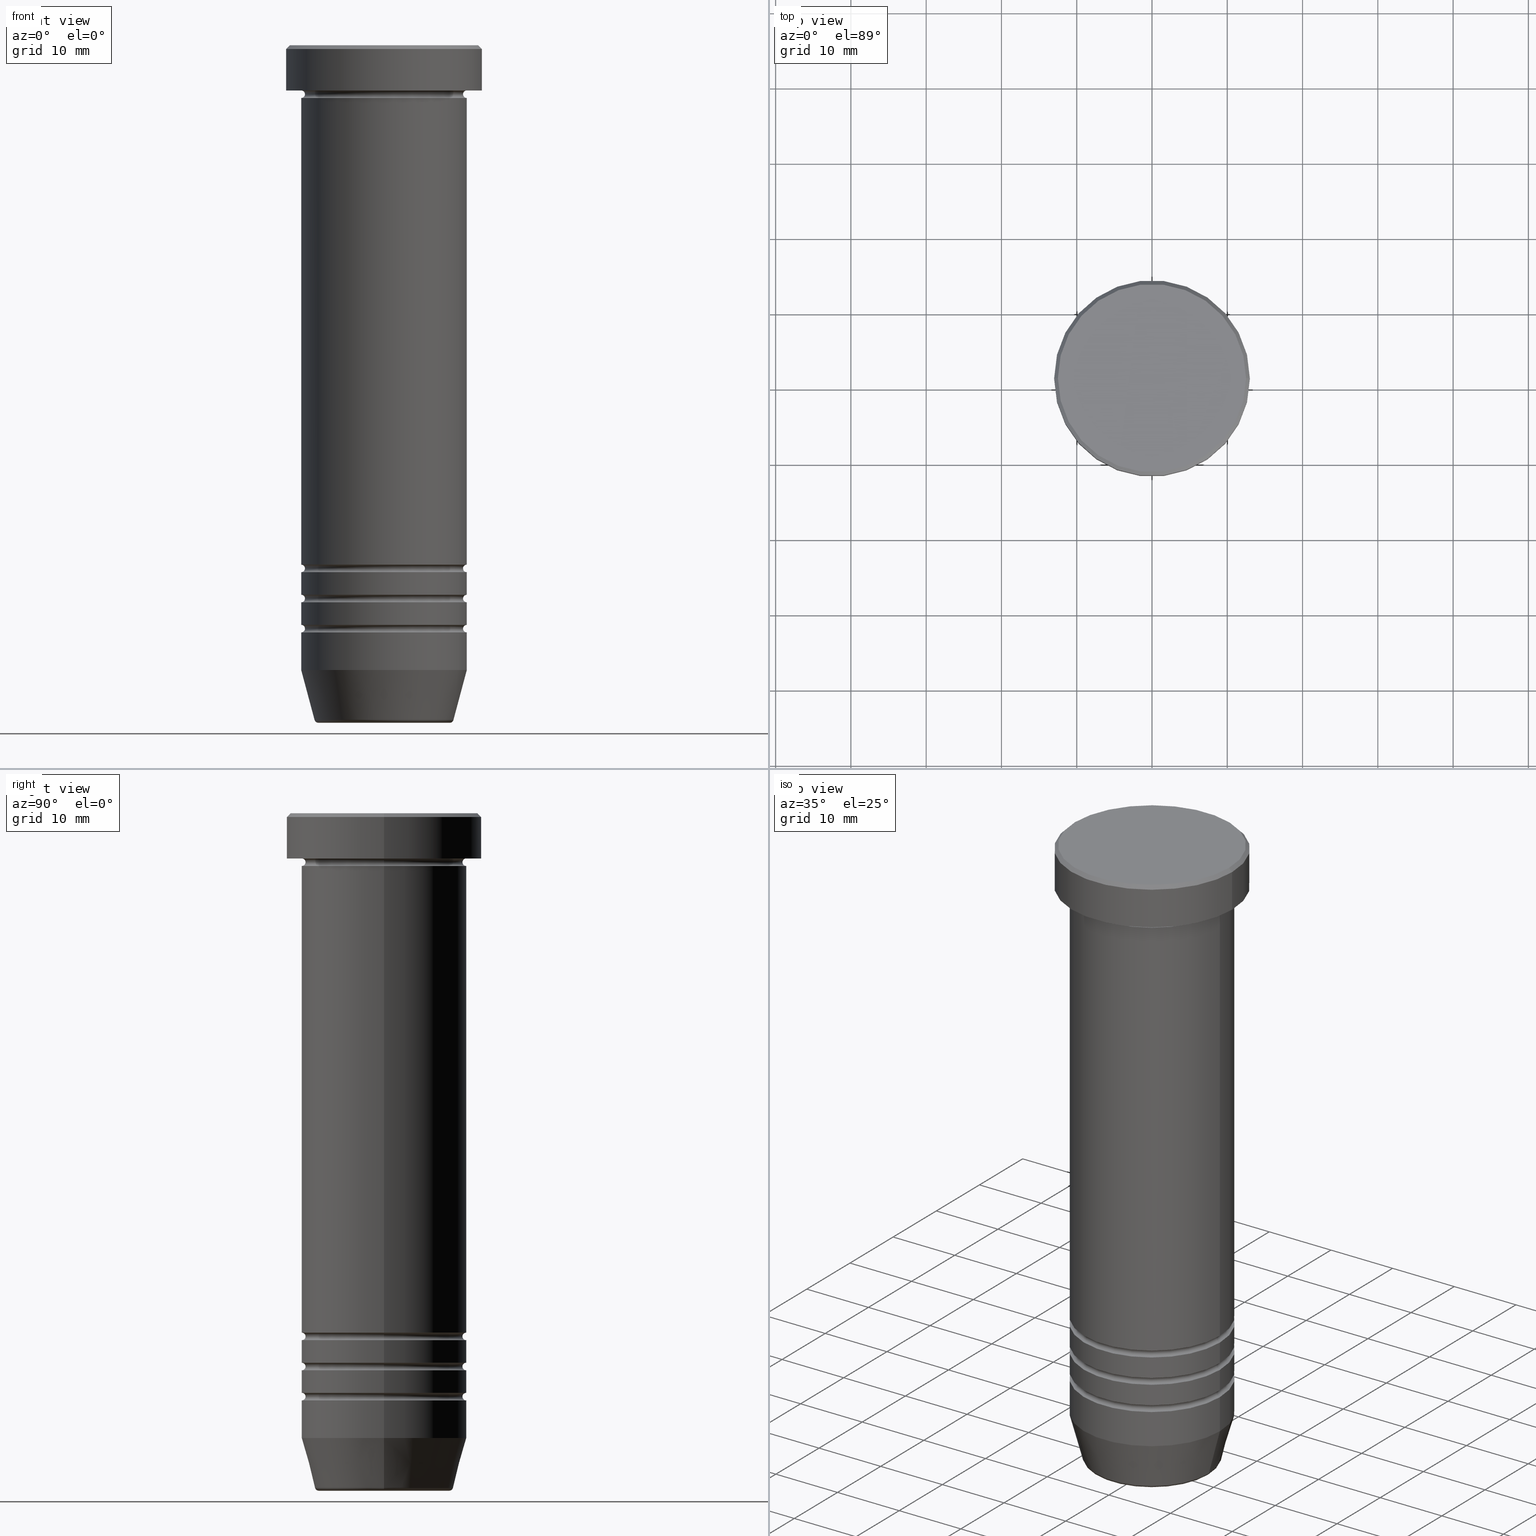
[diagram: canonical four-view strip — front | top / right | iso, engineering-drawing reading convention]
A machine part, canonical four-view strip (front | top / right | iso — engineering-drawing reading convention). The complete STEP part file that produces these views, byte-faithful:
ISO-10303-21;
HEADER;
FILE_DESCRIPTION (( 'STEP AP203' ),
    '1' );
FILE_NAME ('f7cc.STEP',
    '2024-01-02T21:46:16',
    ( '' ),
    ( '' ),
    'SwSTEP 2.0',
    'SolidWorks 2019',
    '' );
FILE_SCHEMA (( 'CONFIG_CONTROL_DESIGN' ));
ENDSEC;

DATA;
#1 = TOROIDAL_SURFACE ( 'NONE', #328, 10.99999999999999645, 0.5000000000000000000 ) ;
#2 = ORIENTED_EDGE ( 'NONE', *, *, #945, .F. ) ;
#3 = CLOSED_SHELL ( 'NONE', ( #1023, #798, #218, #256, #407, #834, #179, #865, #56, #200, #901, #831, #373, #305, #547, #1025, #259, #669, #184, #238, #142, #414, #242, #642, #559, #862 ) ) ;
#4 = PERSON_AND_ORGANIZATION ( #479, #457 ) ;
#5 = ORIENTED_EDGE ( 'NONE', *, *, #909, .T. ) ;
#6 = DIRECTION ( 'NONE',  ( 1.000000000000000000, 0.000000000000000000, 0.000000000000000000 ) ) ;
#7 = CARTESIAN_POINT ( 'NONE',  ( 0.000000000000000000, 0.000000000000000000, 0.000000000000000000 ) ) ;
#8 = EDGE_CURVE ( 'NONE', #107, #354, #555, .T. ) ;
#9 = PERSON_AND_ORGANIZATION ( #479, #457 ) ;
#10 = LINE ( 'NONE', #752, #708 ) ;
#11 = ORIENTED_EDGE ( 'NONE', *, *, #310, .T. ) ;
#12 = DIRECTION ( 'NONE',  ( -1.000000000000000000, -1.224646799147353454E-16, 0.000000000000000000 ) ) ;
#13 = DIRECTION ( 'NONE',  ( -1.000000000000000000, 1.224646799147353454E-16, 0.000000000000000000 ) ) ;
#14 = DIRECTION ( 'NONE',  ( 0.000000000000000000, 0.000000000000000000, -1.000000000000000000 ) ) ;
#15 = CARTESIAN_POINT ( 'NONE',  ( 10.99999999999999645, 1.347111479062088010E-15, -73.49999999999998579 ) ) ;
#16 = TOROIDAL_SURFACE ( 'NONE', #845, 8.740692158992652949, 0.5000000000000000000 ) ;
#17 = VECTOR ( 'NONE', #580, 1000.000000000000000 ) ;
#18 = ORIENTED_EDGE ( 'NONE', *, *, #715, .T. ) ;
#19 = CIRCLE ( 'NONE', #346, 13.00000000000000000 ) ;
#20 = DIRECTION ( 'NONE',  ( 1.000000000000000000, 0.000000000000000000, 0.000000000000000000 ) ) ;
#21 = VERTEX_POINT ( 'NONE', #265 ) ;
#22 = FACE_OUTER_BOUND ( 'NONE', #693, .T. ) ;
#23 = EDGE_CURVE ( 'NONE', #147, #370, #340, .T. ) ;
#24 = EDGE_LOOP ( 'NONE', ( #672, #627, #31, #92 ) ) ;
#25 = CARTESIAN_POINT ( 'NONE',  ( -13.00000000000000000, 1.592040838891559095E-15, -6.000000000000000000 ) ) ;
#26 = DIRECTION ( 'NONE',  ( -0.000000000000000000, -0.000000000000000000, 1.000000000000000000 ) ) ;
#27 = EDGE_LOOP ( 'NONE', ( #904, #699, #907, #1018 ) ) ;
#28 = DESIGN_CONTEXT ( 'detailed design', #790, 'design' ) ;
#29 = DIRECTION ( 'NONE',  ( 1.000000000000000000, 0.000000000000000000, 0.000000000000000000 ) ) ;
#30 = CARTESIAN_POINT ( 'NONE',  ( 0.000000000000000000, 0.000000000000000000, -77.49999999999998579 ) ) ;
#31 = ORIENTED_EDGE ( 'NONE', *, *, #94, .T. ) ;
#32 = EDGE_CURVE ( 'NONE', #731, #673, #623, .T. ) ;
#33 = CIRCLE ( 'NONE', #956, 13.00000000000000000 ) ;
#34 = DIRECTION ( 'NONE',  ( 0.000000000000000000, 0.000000000000000000, -1.000000000000000000 ) ) ;
#35 = AXIS2_PLACEMENT_3D ( 'NONE', #525, #947, #202 ) ;
#36 = AXIS2_PLACEMENT_3D ( 'NONE', #478, #145, #308 ) ;
#37 = EDGE_CURVE ( 'NONE', #731, #147, #155, .T. ) ;
#38 = CIRCLE ( 'NONE', #437, 0.5000000000000004441 ) ;
#39 = CARTESIAN_POINT ( 'NONE',  ( 0.000000000000000000, 0.000000000000000000, -69.49999999999998579 ) ) ;
#40 = CARTESIAN_POINT ( 'NONE',  ( -10.99999999999999645, 0.000000000000000000, -73.49999999999998579 ) ) ;
#41 = DIRECTION ( 'NONE',  ( -0.000000000000000000, -0.000000000000000000, 1.000000000000000000 ) ) ;
#42 = CARTESIAN_POINT ( 'NONE',  ( 10.49999999999999467, 0.000000000000000000, -77.49999999999998579 ) ) ;
#43 = CARTESIAN_POINT ( 'NONE',  ( 10.99999999999999645, 0.000000000000000000, 0.000000000000000000 ) ) ;
#44 = DIRECTION ( 'NONE',  ( -0.000000000000000000, -0.000000000000000000, 1.000000000000000000 ) ) ;
#45 = CARTESIAN_POINT ( 'NONE',  ( 0.000000000000000000, 0.000000000000000000, -76.99999999999998579 ) ) ;
#46 = ORIENTED_EDGE ( 'NONE', *, *, #214, .F. ) ;
#47 = ORIENTED_EDGE ( 'NONE', *, *, #612, .T. ) ;
#48 = MANIFOLD_SOLID_BREP ( 'Zkosen�1', #590 ) ;
#49 = CARTESIAN_POINT ( 'NONE',  ( 0.000000000000000000, 0.000000000000000000, -73.49999999999998579 ) ) ;
#50 = AXIS2_PLACEMENT_3D ( 'NONE', #254, #331, #176 ) ;
#51 = AXIS2_PLACEMENT_3D ( 'NONE', #63, #212, #129 ) ;
#52 = CYLINDRICAL_SURFACE ( 'NONE', #982, 13.00000000000000000 ) ;
#53 = CIRCLE ( 'NONE', #777, 0.5000000000000004441 ) ;
#54 = DIRECTION ( 'NONE',  ( -0.000000000000000000, -0.000000000000000000, 1.000000000000000000 ) ) ;
#55 = CARTESIAN_POINT ( 'NONE',  ( 10.99999999999999645, 1.347111479062088010E-15, -69.49999999999998579 ) ) ;
#56 = ADVANCED_FACE ( 'NONE', ( #191 ), #224, .T. ) ;
#57 = ORIENTED_EDGE ( 'NONE', *, *, #37, .T. ) ;
#58 = DIRECTION ( 'NONE',  ( -0.000000000000000000, -1.000000000000000000, -0.000000000000000000 ) ) ;
#59 = DIRECTION ( 'NONE',  ( -0.000000000000000000, -0.000000000000000000, 1.000000000000000000 ) ) ;
#60 = ORIENTED_EDGE ( 'NONE', *, *, #742, .T. ) ;
#61 = EDGE_LOOP ( 'NONE', ( #5, #100, #993, #2 ) ) ;
#62 = EDGE_CURVE ( 'NONE', #681, #766, #894, .T. ) ;
#63 = CARTESIAN_POINT ( 'NONE',  ( 0.000000000000000000, 4.898587196589412237E-15, -90.00000000000000000 ) ) ;
#64 = CARTESIAN_POINT ( 'NONE',  ( -11.00000000000000000, 1.347111479062088405E-15, -22.50000000000000000 ) ) ;
#65 = CIRCLE ( 'NONE', #971, 0.5000000000000004441 ) ;
#66 = AXIS2_PLACEMENT_3D ( 'NONE', #560, #465, #803 ) ;
#67 = DIRECTION ( 'NONE',  ( 1.000000000000000000, 0.000000000000000000, 0.000000000000000000 ) ) ;
#68 = CC_DESIGN_APPROVAL ( #278, ( #637 ) ) ;
#69 = AXIS2_PLACEMENT_3D ( 'NONE', #96, #682, #211 ) ;
#70 = PERSON_AND_ORGANIZATION ( #479, #457 ) ;
#71 = FACE_OUTER_BOUND ( 'NONE', #512, .T. ) ;
#72 = DIRECTION ( 'NONE',  ( 1.000000000000000000, 0.000000000000000000, 0.000000000000000000 ) ) ;
#73 = PERSON_AND_ORGANIZATION ( #479, #457 ) ;
#74 = CARTESIAN_POINT ( 'NONE',  ( -8.740692158992652949, 1.070426067484272125E-15, -89.50000000000000000 ) ) ;
#75 = DIRECTION ( 'NONE',  ( -0.000000000000000000, -0.000000000000000000, 1.000000000000000000 ) ) ;
#76 = PERSON_AND_ORGANIZATION_ROLE ( 'creator' ) ;
#77 = CARTESIAN_POINT ( 'NONE',  ( 0.000000000000000000, 0.000000000000000000, -0.5000000000000004441 ) ) ;
#78 = DIRECTION ( 'NONE',  ( 0.000000000000000000, 0.000000000000000000, -1.000000000000000000 ) ) ;
#79 = AXIS2_PLACEMENT_3D ( 'NONE', #906, #162, #499 ) ;
#80 = ORIENTED_EDGE ( 'NONE', *, *, #502, .T. ) ;
#81 = CONICAL_SURFACE ( 'NONE', #171, 12.49999999999999645, 0.7853981633974500554 ) ;
#82 = EDGE_LOOP ( 'NONE', ( #922, #770, #467, #495 ) ) ;
#83 = SECURITY_CLASSIFICATION_LEVEL ( 'unclassified' ) ;
#84 = LINE ( 'NONE', #747, #17 ) ;
#85 = DIRECTION ( 'NONE',  ( -0.000000000000000000, -0.000000000000000000, 1.000000000000000000 ) ) ;
#86 = ORIENTED_EDGE ( 'NONE', *, *, #178, .T. ) ;
#87 = ORIENTED_EDGE ( 'NONE', *, *, #754, .F. ) ;
#88 = DATE_TIME_ROLE ( 'creation_date' ) ;
#89 = ORIENTED_EDGE ( 'NONE', *, *, #485, .F. ) ;
#90 = CARTESIAN_POINT ( 'NONE',  ( 11.00000000000000000, 0.000000000000000000, -22.50000000000000000 ) ) ;
#91 = CARTESIAN_POINT ( 'NONE',  ( 0.000000000000000000, 11.00000000000000000, -22.50000000000000000 ) ) ;
#92 = ORIENTED_EDGE ( 'NONE', *, *, #111, .F. ) ;
#93 = DIRECTION ( 'NONE',  ( -0.7071067811865487940, 0.000000000000000000, -0.7071067811865463515 ) ) ;
#94 = EDGE_CURVE ( 'NONE', #911, #445, #397, .T. ) ;
#95 = ORIENTED_EDGE ( 'NONE', *, *, #935, .F. ) ;
#96 = CARTESIAN_POINT ( 'NONE',  ( 0.000000000000000000, 0.000000000000000000, -22.50000000000000000 ) ) ;
#97 = ORIENTED_EDGE ( 'NONE', *, *, #419, .F. ) ;
#98 = CIRCLE ( 'NONE', #920, 0.5000000000000004441 ) ;
#99 = AXIS2_PLACEMENT_3D ( 'NONE', #893, #741, #6 ) ;
#100 = ORIENTED_EDGE ( 'NONE', *, *, #551, .T. ) ;
#101 = AXIS2_PLACEMENT_3D ( 'NONE', #937, #674, #841 ) ;
#102 = CIRCLE ( 'NONE', #240, 11.00000000000000000 ) ;
#103 = ORIENTED_EDGE ( 'NONE', *, *, #456, .F. ) ;
#104 = AXIS2_PLACEMENT_3D ( 'NONE', #463, #785, #1045 ) ;
#105 = DIRECTION ( 'NONE',  ( -0.000000000000000000, -0.000000000000000000, 1.000000000000000000 ) ) ;
#106 = LINE ( 'NONE', #441, #236 ) ;
#107 = VERTEX_POINT ( 'NONE', #1021 ) ;
#108 = VERTEX_POINT ( 'NONE', #700 ) ;
#109 = FACE_OUTER_BOUND ( 'NONE', #27, .T. ) ;
#110 = DIRECTION ( 'NONE',  ( -0.000000000000000000, -0.000000000000000000, 1.000000000000000000 ) ) ;
#111 = EDGE_CURVE ( 'NONE', #1052, #445, #691, .T. ) ;
#112 = ORIENTED_EDGE ( 'NONE', *, *, #715, .F. ) ;
#113 = ORIENTED_EDGE ( 'NONE', *, *, #178, .F. ) ;
#114 = CARTESIAN_POINT ( 'NONE',  ( 11.00000000000000000, 0.000000000000000000, 0.000000000000000000 ) ) ;
#115 = DIRECTION ( 'NONE',  ( 1.000000000000000000, 0.000000000000000000, 0.000000000000000000 ) ) ;
#116 = DIRECTION ( 'NONE',  ( 1.000000000000000000, 0.000000000000000000, 0.000000000000000000 ) ) ;
#117 = VECTOR ( 'NONE', #26, 1000.000000000000000 ) ;
#118 = DIRECTION ( 'NONE',  ( -0.000000000000000000, -0.000000000000000000, 1.000000000000000000 ) ) ;
#119 = TOROIDAL_SURFACE ( 'NONE', #635, 11.00000000000000000, 0.5000000000000000000 ) ;
#120 = AXIS2_PLACEMENT_3D ( 'NONE', #521, #527, #857 ) ;
#121 = LINE ( 'NONE', #1028, #852 ) ;
#122 = EDGE_LOOP ( 'NONE', ( #602, #582, #608, #493 ) ) ;
#123 = FACE_OUTER_BOUND ( 'NONE', #250, .T. ) ;
#124 = CARTESIAN_POINT ( 'NONE',  ( 0.000000000000000000, 0.000000000000000000, -6.499999999999999112 ) ) ;
#125 = CARTESIAN_POINT ( 'NONE',  ( 11.00000000000000000, 0.000000000000000000, -69.99999999999998579 ) ) ;
#126 = ORIENTED_EDGE ( 'NONE', *, *, #111, .T. ) ;
#127 = ORIENTED_EDGE ( 'NONE', *, *, #335, .F. ) ;
#128 = VERTEX_POINT ( 'NONE', #317 ) ;
#129 = DIRECTION ( 'NONE',  ( 1.000000000000000000, 0.000000000000000000, 0.000000000000000000 ) ) ;
#130 = EDGE_CURVE ( 'NONE', #850, #1037, #1041, .T. ) ;
#131 = DIRECTION ( 'NONE',  ( 0.000000000000000000, 0.000000000000000000, -1.000000000000000000 ) ) ;
#132 = ORIENTED_EDGE ( 'NONE', *, *, #930, .T. ) ;
#133 = DIRECTION ( 'NONE',  ( -1.000000000000000000, -1.224646799147353454E-16, 0.000000000000000000 ) ) ;
#134 = AXIS2_PLACEMENT_3D ( 'NONE', #74, #1060, #325 ) ;
#135 = AXIS2_PLACEMENT_3D ( 'NONE', #124, #54, #554 ) ;
#136 = DIRECTION ( 'NONE',  ( -0.000000000000000000, -0.000000000000000000, 1.000000000000000000 ) ) ;
#137 = VERTEX_POINT ( 'NONE', #567 ) ;
#138 = DIRECTION ( 'NONE',  ( 0.000000000000000000, 0.000000000000000000, -1.000000000000000000 ) ) ;
#139 = FACE_OUTER_BOUND ( 'NONE', #282, .T. ) ;
#140 = CARTESIAN_POINT ( 'NONE',  ( 11.00000000000000000, 0.000000000000000000, 0.000000000000000000 ) ) ;
#141 = EDGE_CURVE ( 'NONE', #911, #784, #813, .T. ) ;
#142 = ADVANCED_FACE ( 'NONE', ( #891 ), #1034, .F. ) ;
#143 = FACE_OUTER_BOUND ( 'NONE', #61, .T. ) ;
#144 = DIRECTION ( 'NONE',  ( -0.000000000000000000, -0.000000000000000000, 1.000000000000000000 ) ) ;
#145 = DIRECTION ( 'NONE',  ( -0.000000000000000000, -0.000000000000000000, 1.000000000000000000 ) ) ;
#146 = ORIENTED_EDGE ( 'NONE', *, *, #874, .T. ) ;
#147 = VERTEX_POINT ( 'NONE', #617 ) ;
#148 = DATE_AND_TIME ( #565, #399 ) ;
#149 = EDGE_CURVE ( 'NONE', #586, #370, #572, .T. ) ;
#150 = CARTESIAN_POINT ( 'NONE',  ( 0.000000000000000000, 0.000000000000000000, -0.5000000000000004441 ) ) ;
#151 = AXIS2_PLACEMENT_3D ( 'NONE', #255, #988, #168 ) ;
#152 = TOROIDAL_SURFACE ( 'NONE', #776, 10.99999999999999645, 0.5000000000000000000 ) ;
#153 = DIRECTION ( 'NONE',  ( -0.000000000000000000, -0.000000000000000000, 1.000000000000000000 ) ) ;
#154 = AXIS2_PLACEMENT_3D ( 'NONE', #49, #288, #1042 ) ;
#155 = CIRCLE ( 'NONE', #826, 10.99999999999999822 ) ;
#156 = AXIS2_PLACEMENT_3D ( 'NONE', #981, #85, #329 ) ;
#157 = PERSON_AND_ORGANIZATION ( #479, #457 ) ;
#158 = ORIENTED_EDGE ( 'NONE', *, *, #376, .F. ) ;
#159 = DIRECTION ( 'NONE',  ( -0.000000000000000000, -0.000000000000000000, 1.000000000000000000 ) ) ;
#160 = CARTESIAN_POINT ( 'NONE',  ( 0.000000000000000000, 0.000000000000000000, 0.000000000000000000 ) ) ;
#161 = APPROVAL_STATUS ( 'not_yet_approved' ) ;
#162 = DIRECTION ( 'NONE',  ( -0.000000000000000000, -0.000000000000000000, 1.000000000000000000 ) ) ;
#163 = FACE_OUTER_BOUND ( 'NONE', #82, .T. ) ;
#164 = CC_DESIGN_PERSON_AND_ORGANIZATION_ASSIGNMENT ( #892, #833, ( #786 ) ) ;
#165 = COORDINATED_UNIVERSAL_TIME_OFFSET ( 1, 0, .AHEAD. ) ;
#166 = ORIENTED_EDGE ( 'NONE', *, *, #909, .F. ) ;
#167 = FACE_OUTER_BOUND ( 'NONE', #1035, .T. ) ;
#168 = DIRECTION ( 'NONE',  ( -1.000000000000000000, 0.000000000000000000, -0.000000000000000000 ) ) ;
#169 = CIRCLE ( 'NONE', #395, 10.49999999999999467 ) ;
#170 = EDGE_CURVE ( 'NONE', #766, #653, #102, .T. ) ;
#171 = AXIS2_PLACEMENT_3D ( 'NONE', #718, #885, #802 ) ;
#172 = APPROVAL_PERSON_ORGANIZATION ( #491, #880, #917 ) ;
#173 = AXIS2_PLACEMENT_3D ( 'NONE', #974, #804, #67 ) ;
#174 = ORIENTED_EDGE ( 'NONE', *, *, #23, .T. ) ;
#175 = APPLICATION_PROTOCOL_DEFINITION ( 'international standard', 'config_control_design', 1994, #286 ) ;
#176 = DIRECTION ( 'NONE',  ( 1.000000000000000000, 0.000000000000000000, 0.000000000000000000 ) ) ;
#177 = DIRECTION ( 'NONE',  ( 1.000000000000000000, 0.000000000000000000, 0.000000000000000000 ) ) ;
#178 = EDGE_CURVE ( 'NONE', #975, #850, #386, .T. ) ;
#179 = ADVANCED_FACE ( 'NONE', ( #641 ), #805, .T. ) ;
#180 = ORIENTED_EDGE ( 'NONE', *, *, #978, .T. ) ;
#181 = EDGE_CURVE ( 'NONE', #445, #1052, #235, .T. ) ;
#182 = CARTESIAN_POINT ( 'NONE',  ( 0.000000000000000000, 0.000000000000000000, -73.99999999999998579 ) ) ;
#183 = EDGE_LOOP ( 'NONE', ( #47, #675 ) ) ;
#184 = ADVANCED_FACE ( 'NONE', ( #392 ), #721, .T. ) ;
#185 = EDGE_LOOP ( 'NONE', ( #232, #466, #18, #897 ) ) ;
#186 = ORIENTED_EDGE ( 'NONE', *, *, #485, .T. ) ;
#187 = CARTESIAN_POINT ( 'NONE',  ( -10.49999999999999822, 1.316495309083404420E-15, -6.499999999999999112 ) ) ;
#188 = ORIENTED_EDGE ( 'NONE', *, *, #717, .F. ) ;
#189 = DIRECTION ( 'NONE',  ( 0.000000000000000000, 0.000000000000000000, -1.000000000000000000 ) ) ;
#190 = CIRCLE ( 'NONE', #66, 11.00000000000000000 ) ;
#191 = FACE_OUTER_BOUND ( 'NONE', #916, .T. ) ;
#192 = DIRECTION ( 'NONE',  ( -0.000000000000000000, -0.000000000000000000, 1.000000000000000000 ) ) ;
#193 = EDGE_CURVE ( 'NONE', #284, #780, #38, .T. ) ;
#194 = CARTESIAN_POINT ( 'NONE',  ( 0.000000000000000000, 0.000000000000000000, -77.49999999999998579 ) ) ;
#195 = ORIENTED_EDGE ( 'NONE', *, *, #532, .F. ) ;
#196 = ORIENTED_EDGE ( 'NONE', *, *, #149, .F. ) ;
#197 = DIRECTION ( 'NONE',  ( -0.2588190451025213501, 3.169619151431772337E-17, 0.9659258262890680902 ) ) ;
#198 = ORIENTED_EDGE ( 'NONE', *, *, #952, .T. ) ;
#199 = DIRECTION ( 'NONE',  ( 1.000000000000000000, 0.000000000000000000, 0.000000000000000000 ) ) ;
#200 = ADVANCED_FACE ( 'NONE', ( #123 ), #393, .T. ) ;
#201 = DIRECTION ( 'NONE',  ( 1.000000000000000000, 0.000000000000000000, 0.000000000000000000 ) ) ;
#202 = DIRECTION ( 'NONE',  ( 1.000000000000000000, 0.000000000000000000, 0.000000000000000000 ) ) ;
#203 = ORIENTED_EDGE ( 'NONE', *, *, #502, .F. ) ;
#204 = CARTESIAN_POINT ( 'NONE',  ( 0.000000000000000000, 0.000000000000000000, -90.00000000000000000 ) ) ;
#205 = AXIS2_PLACEMENT_3D ( 'NONE', #996, #957, #285 ) ;
#206 = CARTESIAN_POINT ( 'NONE',  ( 0.000000000000000000, 0.000000000000000000, -77.49999999999998579 ) ) ;
#207 = AXIS2_PLACEMENT_3D ( 'NONE', #886, #144, #973 ) ;
#208 = CARTESIAN_POINT ( 'NONE',  ( 0.000000000000000000, 0.000000000000000000, -77.99999999999998579 ) ) ;
#209 = CIRCLE ( 'NONE', #35, 11.00000000000000000 ) ;
#210 = AXIS2_PLACEMENT_3D ( 'NONE', #515, #755, #749 ) ;
#211 = DIRECTION ( 'NONE',  ( 1.000000000000000000, 0.000000000000000000, 0.000000000000000000 ) ) ;
#212 = DIRECTION ( 'NONE',  ( 0.000000000000000000, -0.000000000000000000, 1.000000000000000000 ) ) ;
#213 = DIRECTION ( 'NONE',  ( 1.000000000000000000, 0.000000000000000000, 0.000000000000000000 ) ) ;
#214 = EDGE_CURVE ( 'NONE', #681, #500, #811, .T. ) ;
#215 = EDGE_LOOP ( 'NONE', ( #698, #1049, #584, #553 ) ) ;
#216 = DIRECTION ( 'NONE',  ( 0.000000000000000000, -1.000000000000000000, 0.000000000000000000 ) ) ;
#217 = DIRECTION ( 'NONE',  ( -1.000000000000000000, 0.000000000000000000, 0.000000000000000000 ) ) ;
#218 = ADVANCED_FACE ( 'NONE', ( #647 ), #347, .F. ) ;
#219 = AXIS2_PLACEMENT_3D ( 'NONE', #45, #962, #631 ) ;
#220 = TOROIDAL_SURFACE ( 'NONE', #101, 10.99999999999999645, 0.5000000000000000000 ) ;
#221 = AXIS2_PLACEMENT_3D ( 'NONE', #481, #727, #320 ) ;
#222 = CARTESIAN_POINT ( 'NONE',  ( -11.00000000000000000, 1.347111479062088405E-15, -82.99999999999998579 ) ) ;
#223 = AXIS2_PLACEMENT_3D ( 'NONE', #694, #944, #887 ) ;
#224 = CYLINDRICAL_SURFACE ( 'NONE', #223, 10.99999999999999645 ) ;
#225 = ORIENTED_EDGE ( 'NONE', *, *, #94, .F. ) ;
#226 = ADVANCED_FACE ( 'NONE', ( #281 ), #581, .T. ) ;
#227 = DIRECTION ( 'NONE',  ( 0.000000000000000000, 0.000000000000000000, -1.000000000000000000 ) ) ;
#228 = DIRECTION ( 'NONE',  ( 1.000000000000000000, 0.000000000000000000, 0.000000000000000000 ) ) ;
#229 = CARTESIAN_POINT ( 'NONE',  ( 0.000000000000000000, 0.000000000000000000, -89.50000000000000000 ) ) ;
#230 = CARTESIAN_POINT ( 'NONE',  ( 0.000000000000000000, 0.000000000000000000, 0.000000000000000000 ) ) ;
#231 = PLANE ( 'NONE',  #634 ) ;
#232 = ORIENTED_EDGE ( 'NONE', *, *, #443, .T. ) ;
#233 = DATE_AND_TIME ( #739, #723 ) ;
#234 = CYLINDRICAL_SURFACE ( 'NONE', #413, 11.00000000000000000 ) ;
#235 = CIRCLE ( 'NONE', #593, 10.49999999999999467 ) ;
#236 = VECTOR ( 'NONE', #611, 1000.000000000000000 ) ;
#237 = DIRECTION ( 'NONE',  ( 1.000000000000000000, 0.000000000000000000, 0.000000000000000000 ) ) ;
#238 = ADVANCED_FACE ( 'NONE', ( #668 ), #16, .T. ) ;
#239 = AXIS2_PLACEMENT_3D ( 'NONE', #711, #306, #879 ) ;
#240 = AXIS2_PLACEMENT_3D ( 'NONE', #633, #153, #801 ) ;
#241 = AXIS2_PLACEMENT_3D ( 'NONE', #360, #268, #929 ) ;
#242 = ADVANCED_FACE ( 'NONE', ( #163 ), #620, .F. ) ;
#243 =( NAMED_UNIT ( * ) SI_UNIT ( $, .STERADIAN. ) SOLID_ANGLE_UNIT ( ) );
#244 = ORIENTED_EDGE ( 'NONE', *, *, #531, .T. ) ;
#245 = DIRECTION ( 'NONE',  ( -0.000000000000000000, -1.000000000000000000, -0.000000000000000000 ) ) ;
#246 = CARTESIAN_POINT ( 'NONE',  ( 0.000000000000000000, 0.000000000000000000, -6.000000000000000000 ) ) ;
#247 = CARTESIAN_POINT ( 'NONE',  ( 10.49999999999999467, 0.000000000000000000, -73.49999999999998579 ) ) ;
#248 = EDGE_CURVE ( 'NONE', #784, #673, #955, .T. ) ;
#249 = CARTESIAN_POINT ( 'NONE',  ( -13.00000000000000000, 1.592040838891559095E-15, -0.5000000000000004441 ) ) ;
#250 = EDGE_LOOP ( 'NONE', ( #244, #440, #563, #470 ) ) ;
#251 = APPROVAL_STATUS ( 'not_yet_approved' ) ;
#252 = EDGE_CURVE ( 'NONE', #448, #766, #65, .T. ) ;
#253 = VERTEX_POINT ( 'NONE', #249 ) ;
#254 = CARTESIAN_POINT ( 'NONE',  ( 0.000000000000000000, 0.000000000000000000, -76.99999999999998579 ) ) ;
#255 = CARTESIAN_POINT ( 'NONE',  ( 0.000000000000000000, -3.469446951953614189E-15, -22.50000000000000000 ) ) ;
#256 = ADVANCED_FACE ( 'NONE', ( #410 ), #297, .F. ) ;
#257 = VECTOR ( 'NONE', #990, 1000.000000000000000 ) ;
#258 = CIRCLE ( 'NONE', #135, 10.49999999999999822 ) ;
#259 = ADVANCED_FACE ( 'NONE', ( #830 ), #923, .F. ) ;
#260 = AXIS2_PLACEMENT_3D ( 'NONE', #462, #110, #279 ) ;
#261 = DIRECTION ( 'NONE',  ( 1.224646799147353207E-16, 1.000000000000000000, 0.000000000000000000 ) ) ;
#262 = CARTESIAN_POINT ( 'NONE',  ( 0.000000000000000000, 0.000000000000000000, -77.49999999999998579 ) ) ;
#263 = FACE_OUTER_BOUND ( 'NONE', #215, .T. ) ;
#264 = ORIENTED_EDGE ( 'NONE', *, *, #695, .F. ) ;
#265 = CARTESIAN_POINT ( 'NONE',  ( -11.00000000000000000, 1.347111479062088405E-15, -77.99999999999998579 ) ) ;
#266 = ORIENTED_EDGE ( 'NONE', *, *, #365, .T. ) ;
#267 = DIRECTION ( 'NONE',  ( -0.000000000000000000, -0.000000000000000000, 1.000000000000000000 ) ) ;
#268 = DIRECTION ( 'NONE',  ( -0.000000000000000000, -0.000000000000000000, 1.000000000000000000 ) ) ;
#269 = DIRECTION ( 'NONE',  ( -0.000000000000000000, -0.000000000000000000, 1.000000000000000000 ) ) ;
#270 = EDGE_LOOP ( 'NONE', ( #158, #924, #663, #126 ) ) ;
#271 = CARTESIAN_POINT ( 'NONE',  ( 0.000000000000000000, 0.000000000000000000, 0.000000000000000000 ) ) ;
#272 = PLANE ( 'NONE',  #382 ) ;
#273 = AXIS2_PLACEMENT_3D ( 'NONE', #654, #245, #14 ) ;
#274 = TOROIDAL_SURFACE ( 'NONE', #362, 10.99999999999999645, 0.5000000000000000000 ) ;
#275 = ORIENTED_EDGE ( 'NONE', *, *, #751, .T. ) ;
#276 = CC_DESIGN_APPROVAL ( #880, ( #778 ) ) ;
#277 = CARTESIAN_POINT ( 'NONE',  ( 0.000000000000000000, 0.000000000000000000, 0.000000000000000000 ) ) ;
#278 = APPROVAL ( #161, 'NEUR�EN�' ) ;
#279 = DIRECTION ( 'NONE',  ( 1.000000000000000000, 0.000000000000000000, 0.000000000000000000 ) ) ;
#280 = ADVANCED_BREP_SHAPE_REPRESENTATION ( 'f7cc', ( #48, #432, #416 ), #1017 ) ;
#281 = FACE_OUTER_BOUND ( 'NONE', #835, .T. ) ;
#282 = EDGE_LOOP ( 'NONE', ( #103, #349, #369, #1008 ) ) ;
#283 = CARTESIAN_POINT ( 'NONE',  ( 0.000000000000000000, 0.000000000000000000, 0.000000000000000000 ) ) ;
#284 = VERTEX_POINT ( 'NONE', #992 ) ;
#285 = DIRECTION ( 'NONE',  ( 1.000000000000000000, 0.000000000000000000, 0.000000000000000000 ) ) ;
#286 = APPLICATION_CONTEXT ( 'configuration controlled 3d designs of mechanical parts and assemblies' ) ;
#287 = CARTESIAN_POINT ( 'NONE',  ( 0.000000000000000000, 0.000000000000000000, -89.62940952255124216 ) ) ;
#288 = DIRECTION ( 'NONE',  ( 0.000000000000000000, 0.000000000000000000, -1.000000000000000000 ) ) ;
#289 = CARTESIAN_POINT ( 'NONE',  ( 0.000000000000000000, 0.000000000000000000, -6.500000000000000888 ) ) ;
#290 = EDGE_CURVE ( 'NONE', #526, #853, #430, .T. ) ;
#291 = ADVANCED_FACE ( 'NONE', ( #263 ), #638, .F. ) ;
#292 = AXIS2_PLACEMENT_3D ( 'NONE', #246, #651, #423 ) ;
#293 = VECTOR ( 'NONE', #726, 1000.000000000000000 ) ;
#294 = CARTESIAN_POINT ( 'NONE',  ( 0.000000000000000000, 0.000000000000000000, -69.49999999999998579 ) ) ;
#295 = CIRCLE ( 'NONE', #484, 11.00000000000000000 ) ;
#296 = ADVANCED_FACE ( 'NONE', ( #903 ), #578, .T. ) ;
#297 = TOROIDAL_SURFACE ( 'NONE', #508, 10.99999999999999645, 0.5000000000000000000 ) ;
#298 = DIRECTION ( 'NONE',  ( -0.000000000000000000, -0.000000000000000000, 1.000000000000000000 ) ) ;
#299 = EDGE_LOOP ( 'NONE', ( #940, #356, #112, #768 ) ) ;
#300 = PRODUCT_RELATED_PRODUCT_CATEGORY ( 'detail', '', ( #786 ) ) ;
#301 = DIRECTION ( 'NONE',  ( -0.000000000000000000, -0.000000000000000000, 1.000000000000000000 ) ) ;
#302 = CARTESIAN_POINT ( 'NONE',  ( 13.00000000000000000, 0.000000000000000000, -6.000000000000000000 ) ) ;
#303 = ORIENTED_EDGE ( 'NONE', *, *, #943, .F. ) ;
#304 = ORIENTED_EDGE ( 'NONE', *, *, #418, .F. ) ;
#305 = ADVANCED_FACE ( 'NONE', ( #912 ), #575, .T. ) ;
#306 = DIRECTION ( 'NONE',  ( -0.000000000000000000, -1.000000000000000000, -0.000000000000000000 ) ) ;
#307 = CARTESIAN_POINT ( 'NONE',  ( -11.00000000000000000, 1.347111479062088405E-15, -6.999999999999999112 ) ) ;
#308 = DIRECTION ( 'NONE',  ( 1.000000000000000000, 0.000000000000000000, 0.000000000000000000 ) ) ;
#309 = EDGE_LOOP ( 'NONE', ( #872, #592, #716, #936 ) ) ;
#310 = EDGE_CURVE ( 'NONE', #147, #731, #542, .T. ) ;
#311 = CARTESIAN_POINT ( 'NONE',  ( 11.00000000000000000, 1.347111479062088405E-15, -6.500000000000000888 ) ) ;
#312 = AXIS2_PLACEMENT_3D ( 'NONE', #829, #735, #995 ) ;
#313 = LINE ( 'NONE', #1032, #293 ) ;
#314 = LOCAL_TIME ( 22, 46, 16.00000000000000000, #408 ) ;
#315 = CIRCLE ( 'NONE', #205, 12.49999999999999645 ) ;
#316 = CC_DESIGN_PERSON_AND_ORGANIZATION_ASSIGNMENT ( #9, #334, ( #778 ) ) ;
#317 = CARTESIAN_POINT ( 'NONE',  ( 11.00000000000000000, 0.000000000000000000, -77.99999999999998579 ) ) ;
#318 = APPROVAL_DATE_TIME ( #732, #880 ) ;
#319 = CARTESIAN_POINT ( 'NONE',  ( 0.000000000000000000, 13.00000000000000000, -6.000000000000000000 ) ) ;
#320 = DIRECTION ( 'NONE',  ( 1.000000000000000000, 0.000000000000000000, 0.000000000000000000 ) ) ;
#321 = DATE_AND_TIME ( #905, #1047 ) ;
#322 = DIRECTION ( 'NONE',  ( 1.000000000000000000, 0.000000000000000000, 0.000000000000000000 ) ) ;
#323 = DIRECTION ( 'NONE',  ( -0.000000000000000000, -0.000000000000000000, 1.000000000000000000 ) ) ;
#324 = CC_DESIGN_DATE_AND_TIME_ASSIGNMENT ( #321, #88, ( #794 ) ) ;
#325 = DIRECTION ( 'NONE',  ( -1.000000000000000000, 1.224646799147353454E-16, 0.000000000000000000 ) ) ;
#326 = CIRCLE ( 'NONE', #1044, 11.00000000000000000 ) ;
#327 = ORIENTED_EDGE ( 'NONE', *, *, #876, .F. ) ;
#328 = AXIS2_PLACEMENT_3D ( 'NONE', #855, #41, #867 ) ;
#329 = DIRECTION ( 'NONE',  ( 1.000000000000000000, 0.000000000000000000, 0.000000000000000000 ) ) ;
#330 = AXIS2_PLACEMENT_3D ( 'NONE', #425, #261, #13 ) ;
#331 = DIRECTION ( 'NONE',  ( -0.000000000000000000, -0.000000000000000000, 1.000000000000000000 ) ) ;
#332 = DIRECTION ( 'NONE',  ( 1.000000000000000000, 0.000000000000000000, 0.000000000000000000 ) ) ;
#333 = EDGE_CURVE ( 'NONE', #1031, #919, #400, .T. ) ;
#334 = PERSON_AND_ORGANIZATION_ROLE ( 'classification_officer' ) ;
#335 = EDGE_CURVE ( 'NONE', #108, #367, #959, .T. ) ;
#336 = DIRECTION ( 'NONE',  ( 1.000000000000000000, 0.000000000000000000, 0.000000000000000000 ) ) ;
#337 = DIRECTION ( 'NONE',  ( 0.000000000000000000, 0.000000000000000000, -1.000000000000000000 ) ) ;
#338 = EDGE_LOOP ( 'NONE', ( #421, #351, #725, #643 ) ) ;
#339 = ORIENTED_EDGE ( 'NONE', *, *, #335, .T. ) ;
#340 = LINE ( 'NONE', #999, #795 ) ;
#341 = CARTESIAN_POINT ( 'NONE',  ( -10.49999999999999467, 1.316495309083404223E-15, -73.49999999999998579 ) ) ;
#342 = AXIS2_PLACEMENT_3D ( 'NONE', #91, #337, #926 ) ;
#343 = DIRECTION ( 'NONE',  ( -1.224646799147353207E-16, 1.000000000000000000, 0.000000000000000000 ) ) ;
#344 = CC_DESIGN_PERSON_AND_ORGANIZATION_ASSIGNMENT ( #157, #411, ( #637 ) ) ;
#345 = AXIS2_PLACEMENT_3D ( 'NONE', #1040, #469, #387 ) ;
#346 = AXIS2_PLACEMENT_3D ( 'NONE', #77, #665, #1003 ) ;
#347 = TOROIDAL_SURFACE ( 'NONE', #624, 10.99999999999999645, 0.5000000000000000000 ) ;
#348 = ORIENTED_EDGE ( 'NONE', *, *, #490, .T. ) ;
#349 = ORIENTED_EDGE ( 'NONE', *, *, #532, .T. ) ;
#350 = LINE ( 'NONE', #372, #622 ) ;
#351 = ORIENTED_EDGE ( 'NONE', *, *, #746, .T. ) ;
#352 = DIRECTION ( 'NONE',  ( 1.000000000000000000, 0.000000000000000000, 0.000000000000000000 ) ) ;
#353 = EDGE_LOOP ( 'NONE', ( #95, #861, #524, #519 ) ) ;
#354 = VERTEX_POINT ( 'NONE', #1061 ) ;
#355 = CARTESIAN_POINT ( 'NONE',  ( 0.000000000000000000, 0.000000000000000000, -82.99999999999998579 ) ) ;
#356 = ORIENTED_EDGE ( 'NONE', *, *, #640, .T. ) ;
#357 = CARTESIAN_POINT ( 'NONE',  ( 13.00000000000000000, 0.000000000000000000, -0.5000000000000004441 ) ) ;
#358 = ORIENTED_EDGE ( 'NONE', *, *, #149, .T. ) ;
#359 = ORIENTED_EDGE ( 'NONE', *, *, #62, .F. ) ;
#360 = CARTESIAN_POINT ( 'NONE',  ( 0.000000000000000000, 0.000000000000000000, -68.99999999999998579 ) ) ;
#361 = AXIS2_PLACEMENT_3D ( 'NONE', #632, #556, #391 ) ;
#362 = AXIS2_PLACEMENT_3D ( 'NONE', #294, #227, #625 ) ;
#363 = ORIENTED_EDGE ( 'NONE', *, *, #62, .T. ) ;
#364 = AXIS2_PLACEMENT_3D ( 'NONE', #30, #189, #1009 ) ;
#365 = EDGE_CURVE ( 'NONE', #1020, #734, #315, .T. ) ;
#366 = CYLINDRICAL_SURFACE ( 'NONE', #984, 11.00000000000000000 ) ;
#367 = VERTEX_POINT ( 'NONE', #431 ) ;
#368 = CARTESIAN_POINT ( 'NONE',  ( 0.000000000000000000, 0.000000000000000000, -82.99999999999998579 ) ) ;
#369 = ORIENTED_EDGE ( 'NONE', *, *, #460, .T. ) ;
#370 = VERTEX_POINT ( 'NONE', #1012 ) ;
#371 = CARTESIAN_POINT ( 'NONE',  ( 9.124355652982133691, 0.000000000000000000, -90.00000000000000000 ) ) ;
#372 = CARTESIAN_POINT ( 'NONE',  ( -12.49999999999999645, 0.000000000000000000, 0.000000000000000000 ) ) ;
#373 = ADVANCED_FACE ( 'NONE', ( #22 ), #773, .T. ) ;
#374 = EDGE_CURVE ( 'NONE', #509, #1037, #536, .T. ) ;
#375 = CARTESIAN_POINT ( 'NONE',  ( 0.000000000000000000, 0.000000000000000000, 0.000000000000000000 ) ) ;
#376 = EDGE_CURVE ( 'NONE', #128, #445, #98, .T. ) ;
#377 = DIRECTION ( 'NONE',  ( -0.000000000000000000, -1.000000000000000000, -0.000000000000000000 ) ) ;
#378 = ORIENTED_EDGE ( 'NONE', *, *, #799, .F. ) ;
#379 = PLANE ( 'NONE',  #51 ) ;
#380 = CARTESIAN_POINT ( 'NONE',  ( 0.000000000000000000, 0.000000000000000000, 0.000000000000000000 ) ) ;
#381 = EDGE_LOOP ( 'NONE', ( #486, #771, #132, #303 ) ) ;
#382 = AXIS2_PLACEMENT_3D ( 'NONE', #535, #450, #702 ) ;
#383 = CIRCLE ( 'NONE', #207, 9.223655072137189492 ) ;
#384 = DIRECTION ( 'NONE',  ( 1.000000000000000000, 0.000000000000000000, 0.000000000000000000 ) ) ;
#385 = AXIS2_PLACEMENT_3D ( 'NONE', #473, #58, #1027 ) ;
#386 = CIRCLE ( 'NONE', #670, 9.223655072137189492 ) ;
#387 = DIRECTION ( 'NONE',  ( 0.000000000000000000, 0.000000000000000000, -1.000000000000000000 ) ) ;
#388 = ADVANCED_FACE ( 'NONE', ( #600 ), #272, .T. ) ;
#389 = DIRECTION ( 'NONE',  ( 0.000000000000000000, 0.000000000000000000, -1.000000000000000000 ) ) ;
#390 = FACE_OUTER_BOUND ( 'NONE', #677, .T. ) ;
#391 = DIRECTION ( 'NONE',  ( -1.000000000000000000, 0.000000000000000000, 0.000000000000000000 ) ) ;
#392 = FACE_OUTER_BOUND ( 'NONE', #969, .T. ) ;
#393 = CONICAL_SURFACE ( 'NONE', #104, 9.124355652982133691, 0.2617993877991500740 ) ;
#394 = CARTESIAN_POINT ( 'NONE',  ( 0.000000000000000000, 0.000000000000000000, -22.50000000000000000 ) ) ;
#395 = AXIS2_PLACEMENT_3D ( 'NONE', #39, #544, #115 ) ;
#396 = CIRCLE ( 'NONE', #740, 10.99999999999999289 ) ;
#397 = CIRCLE ( 'NONE', #898, 0.5000000000000004441 ) ;
#398 = LINE ( 'NONE', #549, #537 ) ;
#399 = LOCAL_TIME ( 22, 46, 16.00000000000000000, #165 ) ;
#400 = CIRCLE ( 'NONE', #292, 11.00000000000000000 ) ;
#401 = ORIENTED_EDGE ( 'NONE', *, *, #1007, .F. ) ;
#402 = CARTESIAN_POINT ( 'NONE',  ( 10.99999999999999645, 0.000000000000000000, -77.49999999999998579 ) ) ;
#403 = ORIENTED_EDGE ( 'NONE', *, *, #551, .F. ) ;
#404 = CARTESIAN_POINT ( 'NONE',  ( 0.000000000000000000, 0.000000000000000000, 0.000000000000000000 ) ) ;
#405 = DIRECTION ( 'NONE',  ( 1.000000000000000000, 0.000000000000000000, 0.000000000000000000 ) ) ;
#406 = EDGE_CURVE ( 'NONE', #951, #583, #1002, .T. ) ;
#407 = ADVANCED_FACE ( 'NONE', ( #763 ), #827, .F. ) ;
#408 = COORDINATED_UNIVERSAL_TIME_OFFSET ( 1, 0, .AHEAD. ) ;
#409 = DIRECTION ( 'NONE',  ( 1.224646799147353207E-16, 1.000000000000000000, 0.000000000000000000 ) ) ;
#410 = FACE_OUTER_BOUND ( 'NONE', #299, .T. ) ;
#411 = PERSON_AND_ORGANIZATION_ROLE ( 'design_supplier' ) ;
#412 = DIRECTION ( 'NONE',  ( 1.000000000000000000, 0.000000000000000000, 0.000000000000000000 ) ) ;
#413 = AXIS2_PLACEMENT_3D ( 'NONE', #404, #910, #412 ) ;
#414 = ADVANCED_FACE ( 'NONE', ( #689 ), #765, .F. ) ;
#415 = ORIENTED_EDGE ( 'NONE', *, *, #248, .F. ) ;
#416 = AXIS2_PLACEMENT_3D ( 'NONE', #230, #899, #994 ) ;
#417 = DIRECTION ( 'NONE',  ( -0.000000000000000000, -0.000000000000000000, 1.000000000000000000 ) ) ;
#418 = EDGE_CURVE ( 'NONE', #137, #107, #574, .T. ) ;
#419 = EDGE_CURVE ( 'NONE', #1020, #447, #121, .T. ) ;
#420 = ADVANCED_FACE ( 'NONE', ( #1019 ), #458, .F. ) ;
#421 = ORIENTED_EDGE ( 'NONE', *, *, #529, .T. ) ;
#422 = DIRECTION ( 'NONE',  ( 0.000000000000000000, 0.000000000000000000, -1.000000000000000000 ) ) ;
#423 = DIRECTION ( 'NONE',  ( -1.000000000000000000, 0.000000000000000000, 0.000000000000000000 ) ) ;
#424 = ORIENTED_EDGE ( 'NONE', *, *, #1054, .T. ) ;
#425 = CARTESIAN_POINT ( 'NONE',  ( -10.99999999999999645, 1.347111479062088010E-15, -69.49999999999998579 ) ) ;
#426 = CYLINDRICAL_SURFACE ( 'NONE', #312, 10.99999999999999645 ) ;
#427 = DIRECTION ( 'NONE',  ( -0.000000000000000000, -0.000000000000000000, 1.000000000000000000 ) ) ;
#428 = EDGE_LOOP ( 'NONE', ( #596, #707, #728, #225 ) ) ;
#429 = EDGE_LOOP ( 'NONE', ( #859, #86, #737, #832 ) ) ;
#430 = CIRCLE ( 'NONE', #758, 13.00000000000000000 ) ;
#431 = CARTESIAN_POINT ( 'NONE',  ( 8.740692158992652949, 0.000000000000000000, -90.00000000000000000 ) ) ;
#432 = MANIFOLD_SOLID_BREP ( 'Zaoblit5', #3 ) ;
#433 = CIRCLE ( 'NONE', #915, 12.49999999999999645 ) ;
#434 = AXIS2_PLACEMENT_3D ( 'NONE', #454, #873, #557 ) ;
#435 = ORIENTED_EDGE ( 'NONE', *, *, #406, .F. ) ;
#436 = APPROVAL_PERSON_ORGANIZATION ( #989, #278, #503 ) ;
#437 = AXIS2_PLACEMENT_3D ( 'NONE', #40, #377, #1053 ) ;
#438 = CARTESIAN_POINT ( 'NONE',  ( 0.000000000000000000, 0.000000000000000000, -72.99999999999998579 ) ) ;
#439 = CARTESIAN_POINT ( 'NONE',  ( 10.99999999999999289, 0.000000000000000000, -76.99999999999998579 ) ) ;
#440 = ORIENTED_EDGE ( 'NONE', *, *, #914, .T. ) ;
#441 = CARTESIAN_POINT ( 'NONE',  ( -13.00000000000000000, 1.592040838891559095E-15, 0.000000000000000000 ) ) ;
#442 = EDGE_LOOP ( 'NONE', ( #856, #304, #1055, #401 ) ) ;
#443 = EDGE_CURVE ( 'NONE', #284, #784, #724, .T. ) ;
#444 = DIRECTION ( 'NONE',  ( -0.000000000000000000, -0.000000000000000000, 1.000000000000000000 ) ) ;
#445 = VERTEX_POINT ( 'NONE', #42 ) ;
#446 = DIRECTION ( 'NONE',  ( -1.000000000000000000, 0.000000000000000000, 0.000000000000000000 ) ) ;
#447 = VERTEX_POINT ( 'NONE', #357 ) ;
#448 = VERTEX_POINT ( 'NONE', #783 ) ;
#449 = FACE_OUTER_BOUND ( 'NONE', #338, .T. ) ;
#450 = DIRECTION ( 'NONE',  ( 0.000000000000000000, -0.000000000000000000, 1.000000000000000000 ) ) ;
#451 = CIRCLE ( 'NONE', #99, 11.00000000000000000 ) ;
#452 = EDGE_LOOP ( 'NONE', ( #745, #80, #963, #359 ) ) ;
#453 = AXIS2_PLACEMENT_3D ( 'NONE', #704, #44, #468 ) ;
#454 = CARTESIAN_POINT ( 'NONE',  ( 0.000000000000000000, 0.000000000000000000, -77.49999999999998579 ) ) ;
#455 = EDGE_CURVE ( 'NONE', #679, #354, #169, .T. ) ;
#456 = EDGE_CURVE ( 'NONE', #853, #253, #106, .T. ) ;
#457 = ORGANIZATION ( 'NEUR�EN�', 'NEUR�EN�', '' ) ;
#458 = TOROIDAL_SURFACE ( 'NONE', #120, 11.00000000000000000, 0.5000000000000000000 ) ;
#459 = DIRECTION ( 'NONE',  ( 0.000000000000000000, 0.000000000000000000, -1.000000000000000000 ) ) ;
#460 = EDGE_CURVE ( 'NONE', #526, #447, #942, .T. ) ;
#461 = ORIENTED_EDGE ( 'NONE', *, *, #671, .F. ) ;
#462 = CARTESIAN_POINT ( 'NONE',  ( 0.000000000000000000, 0.000000000000000000, -73.99999999999998579 ) ) ;
#463 = CARTESIAN_POINT ( 'NONE',  ( 0.000000000000000000, 0.000000000000000000, -90.00000000000000000 ) ) ;
#464 = DIRECTION ( 'NONE',  ( 1.000000000000000000, 0.000000000000000000, 0.000000000000000000 ) ) ;
#465 = DIRECTION ( 'NONE',  ( -0.000000000000000000, -0.000000000000000000, 1.000000000000000000 ) ) ;
#466 = ORIENTED_EDGE ( 'NONE', *, *, #248, .T. ) ;
#467 = ORIENTED_EDGE ( 'NONE', *, *, #32, .T. ) ;
#468 = DIRECTION ( 'NONE',  ( 1.000000000000000000, 0.000000000000000000, 0.000000000000000000 ) ) ;
#469 = DIRECTION ( 'NONE',  ( 0.000000000000000000, -1.000000000000000000, 0.000000000000000000 ) ) ;
#470 = ORIENTED_EDGE ( 'NONE', *, *, #130, .F. ) ;
#471 = AXIS2_PLACEMENT_3D ( 'NONE', #1038, #474, #720 ) ;
#472 = CIRCLE ( 'NONE', #589, 11.00000000000000000 ) ;
#473 = CARTESIAN_POINT ( 'NONE',  ( -10.99999999999999645, 0.000000000000000000, -69.49999999999998579 ) ) ;
#474 = DIRECTION ( 'NONE',  ( 1.224646799147353207E-16, 1.000000000000000000, 0.000000000000000000 ) ) ;
#475 = ADVANCED_FACE ( 'NONE', ( #949 ), #505, .F. ) ;
#476 = CARTESIAN_POINT ( 'NONE',  ( 0.000000000000000000, 0.000000000000000000, -68.99999999999998579 ) ) ;
#477 = DIRECTION ( 'NONE',  ( -0.000000000000000000, -0.000000000000000000, 1.000000000000000000 ) ) ;
#478 = CARTESIAN_POINT ( 'NONE',  ( 0.000000000000000000, 0.000000000000000000, -69.99999999999998579 ) ) ;
#479 = PERSON ( 'NEUR�EN�', 'NEUR�EN�', 'NEUR�EN�', ('NEUR�EN�'), ('NEUR�EN�'), ('NEUR�EN�') ) ;
#480 = CYLINDRICAL_SURFACE ( 'NONE', #453, 11.00000000000000000 ) ;
#481 = CARTESIAN_POINT ( 'NONE',  ( 0.000000000000000000, 0.000000000000000000, -77.49999999999998579 ) ) ;
#482 = ORIENTED_EDGE ( 'NONE', *, *, #774, .T. ) ;
#483 = CIRCLE ( 'NONE', #588, 10.49999999999999467 ) ;
#484 = AXIS2_PLACEMENT_3D ( 'NONE', #609, #118, #687 ) ;
#485 = EDGE_CURVE ( 'NONE', #367, #108, #847, .T. ) ;
#486 = ORIENTED_EDGE ( 'NONE', *, *, #742, .F. ) ;
#487 = DIRECTION ( 'NONE',  ( -1.000000000000000000, 1.224646799147353454E-16, 0.000000000000000000 ) ) ;
#488 = AXIS2_PLACEMENT_3D ( 'NONE', #7, #323, #177 ) ;
#489 = DIRECTION ( 'NONE',  ( 0.000000000000000000, 0.000000000000000000, -1.000000000000000000 ) ) ;
#490 = EDGE_CURVE ( 'NONE', #107, #951, #398, .T. ) ;
#491 = PERSON_AND_ORGANIZATION ( #479, #457 ) ;
#492 = ORIENTED_EDGE ( 'NONE', *, *, #419, .T. ) ;
#493 = ORIENTED_EDGE ( 'NONE', *, *, #965, .F. ) ;
#494 = DIRECTION ( 'NONE',  ( -0.000000000000000000, -0.000000000000000000, 1.000000000000000000 ) ) ;
#495 = ORIENTED_EDGE ( 'NONE', *, *, #986, .F. ) ;
#496 = CARTESIAN_POINT ( 'NONE',  ( 0.000000000000000000, 0.000000000000000000, -90.00000000000000000 ) ) ;
#497 = APPROVAL_DATE_TIME ( #585, #278 ) ;
#498 = ORIENTED_EDGE ( 'NONE', *, *, #799, .T. ) ;
#499 = DIRECTION ( 'NONE',  ( 1.000000000000000000, 0.000000000000000000, 0.000000000000000000 ) ) ;
#500 = VERTEX_POINT ( 'NONE', #64 ) ;
#501 = CARTESIAN_POINT ( 'NONE',  ( 11.00000000000000000, 0.000000000000000000, -6.499999999999999112 ) ) ;
#502 = EDGE_CURVE ( 'NONE', #500, #653, #313, .T. ) ;
#503 = APPROVAL_ROLE ( '' ) ;
#504 = LINE ( 'NONE', #816, #257 ) ;
#505 = TOROIDAL_SURFACE ( 'NONE', #895, 11.00000000000000000, 0.5000000000000000000 ) ;
#506 = CIRCLE ( 'NONE', #652, 0.5000000000000004441 ) ;
#507 = DIRECTION ( 'NONE',  ( 0.000000000000000000, -1.000000000000000000, 0.000000000000000000 ) ) ;
#508 = AXIS2_PLACEMENT_3D ( 'NONE', #842, #1004, #657 ) ;
#509 = VERTEX_POINT ( 'NONE', #222 ) ;
#510 = DIRECTION ( 'NONE',  ( 1.224646799147353207E-16, 1.000000000000000000, 0.000000000000000000 ) ) ;
#511 = CARTESIAN_POINT ( 'NONE',  ( 0.000000000000000000, 0.000000000000000000, -89.50000000000000000 ) ) ;
#512 = EDGE_LOOP ( 'NONE', ( #767, #180, #615, #435 ) ) ;
#513 = ORIENTED_EDGE ( 'NONE', *, *, #754, .T. ) ;
#514 = CARTESIAN_POINT ( 'NONE',  ( 9.223655072137189492, 0.000000000000000000, -89.62940952255124216 ) ) ;
#515 = CARTESIAN_POINT ( 'NONE',  ( 0.000000000000000000, 0.000000000000000000, -73.49999999999998579 ) ) ;
#516 = DIRECTION ( 'NONE',  ( 0.000000000000000000, -1.000000000000000000, 0.000000000000000000 ) ) ;
#517 = CYLINDRICAL_SURFACE ( 'NONE', #896, 11.00000000000000000 ) ;
#518 = CC_DESIGN_DATE_AND_TIME_ASSIGNMENT ( #233, #569, ( #778 ) ) ;
#519 = ORIENTED_EDGE ( 'NONE', *, *, #252, .F. ) ;
#520 = CONICAL_SURFACE ( 'NONE', #621, 9.124355652982133691, 0.2617993877991500740 ) ;
#521 = CARTESIAN_POINT ( 'NONE',  ( 0.000000000000000000, 0.000000000000000000, -6.499999999999999112 ) ) ;
#522 = CIRCLE ( 'NONE', #50, 10.99999999999999289 ) ;
#523 = CONICAL_SURFACE ( 'NONE', #958, 12.49999999999999645, 0.7853981633974500554 ) ;
#524 = ORIENTED_EDGE ( 'NONE', *, *, #562, .T. ) ;
#525 = CARTESIAN_POINT ( 'NONE',  ( 0.000000000000000000, 0.000000000000000000, -69.99999999999998579 ) ) ;
#526 = VERTEX_POINT ( 'NONE', #302 ) ;
#527 = DIRECTION ( 'NONE',  ( -0.000000000000000000, -0.000000000000000000, 1.000000000000000000 ) ) ;
#528 = EDGE_LOOP ( 'NONE', ( #57, #174, #196, #927 ) ) ;
#529 = EDGE_CURVE ( 'NONE', #911, #748, #688, .T. ) ;
#530 = CARTESIAN_POINT ( 'NONE',  ( -11.00000000000000000, 0.000000000000000000, -6.000000000000000000 ) ) ;
#531 = EDGE_CURVE ( 'NONE', #850, #975, #383, .T. ) ;
#532 = EDGE_CURVE ( 'NONE', #853, #526, #33, .T. ) ;
#533 = DIRECTION ( 'NONE',  ( 0.000000000000000000, 0.000000000000000000, -1.000000000000000000 ) ) ;
#534 = FACE_OUTER_BOUND ( 'NONE', #599, .T. ) ;
#535 = CARTESIAN_POINT ( 'NONE',  ( 0.000000000000000000, 0.000000000000000000, 0.000000000000000000 ) ) ;
#536 = CIRCLE ( 'NONE', #1030, 11.00000000000000000 ) ;
#537 = VECTOR ( 'NONE', #966, 1000.000000000000000 ) ;
#538 = ORIENTED_EDGE ( 'NONE', *, *, #671, .T. ) ;
#539 = AXIS2_PLACEMENT_3D ( 'NONE', #394, #301, #464 ) ;
#540 = DIRECTION ( 'NONE',  ( -0.000000000000000000, -0.000000000000000000, 1.000000000000000000 ) ) ;
#541 = CC_DESIGN_APPROVAL ( #710, ( #794 ) ) ;
#542 = CIRCLE ( 'NONE', #156, 10.99999999999999822 ) ;
#543 = FACE_OUTER_BOUND ( 'NONE', #843, .T. ) ;
#544 = DIRECTION ( 'NONE',  ( 0.000000000000000000, 0.000000000000000000, -1.000000000000000000 ) ) ;
#545 = CARTESIAN_POINT ( 'NONE',  ( -10.99999999999999822, 1.347111479062088405E-15, -22.50000000000000000 ) ) ;
#546 = FACE_BOUND ( 'NONE', #183, .T. ) ;
#547 = ADVANCED_FACE ( 'NONE', ( #1043 ), #520, .T. ) ;
#548 = CARTESIAN_POINT ( 'NONE',  ( 12.49999999999999645, 1.561424668912875111E-15, 0.000000000000000000 ) ) ;
#549 = CARTESIAN_POINT ( 'NONE',  ( -10.99999999999999645, 1.347111479062088010E-15, 0.000000000000000000 ) ) ;
#550 = CIRCLE ( 'NONE', #79, 10.49999999999999822 ) ;
#551 = EDGE_CURVE ( 'NONE', #586, #679, #1015, .T. ) ;
#552 = CIRCLE ( 'NONE', #539, 11.00000000000000000 ) ;
#553 = ORIENTED_EDGE ( 'NONE', *, *, #170, .T. ) ;
#554 = DIRECTION ( 'NONE',  ( 1.000000000000000000, 0.000000000000000000, 0.000000000000000000 ) ) ;
#555 = CIRCLE ( 'NONE', #330, 0.5000000000000004441 ) ;
#556 = DIRECTION ( 'NONE',  ( 0.000000000000000000, 0.000000000000000000, -1.000000000000000000 ) ) ;
#557 = DIRECTION ( 'NONE',  ( 1.000000000000000000, 0.000000000000000000, 0.000000000000000000 ) ) ;
#558 = CARTESIAN_POINT ( 'NONE',  ( 8.740692158992652949, 0.000000000000000000, -89.50000000000000000 ) ) ;
#559 = ADVANCED_FACE ( 'NONE', ( #793 ), #152, .F. ) ;
#560 = CARTESIAN_POINT ( 'NONE',  ( 0.000000000000000000, 0.000000000000000000, -6.999999999999999112 ) ) ;
#561 = DIRECTION ( 'NONE',  ( 0.000000000000000000, -1.000000000000000000, 0.000000000000000000 ) ) ;
#562 = EDGE_CURVE ( 'NONE', #653, #766, #190, .T. ) ;
#563 = ORIENTED_EDGE ( 'NONE', *, *, #817, .F. ) ;
#564 = ADVANCED_FACE ( 'NONE', ( #546, #976 ), #231, .T. ) ;
#565 = CALENDAR_DATE ( 2024, 2, 1 ) ;
#566 = DIRECTION ( 'NONE',  ( -1.000000000000000000, 1.224646799147353454E-16, 0.000000000000000000 ) ) ;
#567 = CARTESIAN_POINT ( 'NONE',  ( 10.99999999999999289, 0.000000000000000000, -68.99999999999998579 ) ) ;
#568 = AXIS2_PLACEMENT_3D ( 'NONE', #375, #1024, #352 ) ;
#569 = DATE_TIME_ROLE ( 'classification_date' ) ;
#570 = CIRCLE ( 'NONE', #998, 0.5000000000000004441 ) ;
#571 = VECTOR ( 'NONE', #197, 1000.000000000000000 ) ;
#572 = CIRCLE ( 'NONE', #36, 11.00000000000000000 ) ;
#573 = CARTESIAN_POINT ( 'NONE',  ( -10.99999999999999645, 1.347111479062088010E-15, -77.49999999999998579 ) ) ;
#574 = CIRCLE ( 'NONE', #241, 10.99999999999999289 ) ;
#575 = CYLINDRICAL_SURFACE ( 'NONE', #488, 11.00000000000000000 ) ;
#576 = APPLICATION_PROTOCOL_DEFINITION ( 'international standard', 'config_control_design', 1994, #790 ) ;
#577 = CARTESIAN_POINT ( 'NONE',  ( 11.00000000000000000, 0.000000000000000000, -6.999999999999999112 ) ) ;
#578 = PLANE ( 'NONE',  #342 ) ;
#579 = COORDINATED_UNIVERSAL_TIME_OFFSET ( 1, 0, .AHEAD. ) ;
#580 = DIRECTION ( 'NONE',  ( -0.000000000000000000, -0.000000000000000000, 1.000000000000000000 ) ) ;
#581 = CYLINDRICAL_SURFACE ( 'NONE', #997, 13.00000000000000000 ) ;
#582 = ORIENTED_EDGE ( 'NONE', *, *, #991, .T. ) ;
#583 = VERTEX_POINT ( 'NONE', #714 ) ;
#584 = ORIENTED_EDGE ( 'NONE', *, *, #252, .T. ) ;
#585 = DATE_AND_TIME ( #979, #810 ) ;
#586 = VERTEX_POINT ( 'NONE', #125 ) ;
#587 = DIRECTION ( 'NONE',  ( 1.000000000000000000, 0.000000000000000000, 0.000000000000000000 ) ) ;
#588 = AXIS2_PLACEMENT_3D ( 'NONE', #650, #1056, #587 ) ;
#589 = AXIS2_PLACEMENT_3D ( 'NONE', #182, #192, #928 ) ;
#590 = CLOSED_SHELL ( 'NONE', ( #950, #858, #420, #1051, #226, #296, #388, #610, #564, #683, #291, #475, #913 ) ) ;
#591 = ORIENTED_EDGE ( 'NONE', *, *, #717, .T. ) ;
#592 = ORIENTED_EDGE ( 'NONE', *, *, #376, .T. ) ;
#593 = AXIS2_PLACEMENT_3D ( 'NONE', #206, #533, #72 ) ;
#594 = DIRECTION ( 'NONE',  ( -0.000000000000000000, -0.000000000000000000, 1.000000000000000000 ) ) ;
#595 = DIRECTION ( 'NONE',  ( -0.000000000000000000, -0.000000000000000000, 1.000000000000000000 ) ) ;
#596 = ORIENTED_EDGE ( 'NONE', *, *, #751, .F. ) ;
#597 = ORIENTED_EDGE ( 'NONE', *, *, #1054, .F. ) ;
#598 = DIRECTION ( 'NONE',  ( 1.000000000000000000, 0.000000000000000000, 0.000000000000000000 ) ) ;
#599 = EDGE_LOOP ( 'NONE', ( #97, #461, #498, #779 ) ) ;
#600 = FACE_OUTER_BOUND ( 'NONE', #838, .T. ) ;
#601 = ORIENTED_EDGE ( 'NONE', *, *, #418, .T. ) ;
#602 = ORIENTED_EDGE ( 'NONE', *, *, #935, .T. ) ;
#603 = FACE_OUTER_BOUND ( 'NONE', #122, .T. ) ;
#604 = ORIENTED_EDGE ( 'NONE', *, *, #986, .T. ) ;
#605 = CIRCLE ( 'NONE', #134, 0.5000000000000004441 ) ;
#606 = DIRECTION ( 'NONE',  ( -1.224646799147353207E-16, 1.000000000000000000, 0.000000000000000000 ) ) ;
#607 = VECTOR ( 'NONE', #875, 1000.000000000000000 ) ;
#608 = ORIENTED_EDGE ( 'NONE', *, *, #612, .F. ) ;
#609 = CARTESIAN_POINT ( 'NONE',  ( 0.000000000000000000, 0.000000000000000000, -77.99999999999998579 ) ) ;
#610 = ADVANCED_FACE ( 'NONE', ( #139 ), #52, .T. ) ;
#611 = DIRECTION ( 'NONE',  ( -0.000000000000000000, -0.000000000000000000, 1.000000000000000000 ) ) ;
#612 = EDGE_CURVE ( 'NONE', #919, #1031, #326, .T. ) ;
#613 = DIRECTION ( 'NONE',  ( -1.000000000000000000, 0.000000000000000000, 0.000000000000000000 ) ) ;
#614 = FACE_OUTER_BOUND ( 'NONE', #659, .T. ) ;
#615 = ORIENTED_EDGE ( 'NONE', *, *, #695, .T. ) ;
#616 = DIRECTION ( 'NONE',  ( -1.000000000000000000, -1.224646799147353454E-16, 0.000000000000000000 ) ) ;
#617 = CARTESIAN_POINT ( 'NONE',  ( -10.99999999999999822, 1.347111479062088207E-15, -72.99999999999998579 ) ) ;
#618 = DIRECTION ( 'NONE',  ( -1.224646799147353207E-16, 1.000000000000000000, 0.000000000000000000 ) ) ;
#619 = CARTESIAN_POINT ( 'NONE',  ( 10.99999999999999645, 1.347111479062088010E-15, -77.49999999999998579 ) ) ;
#620 = TOROIDAL_SURFACE ( 'NONE', #210, 10.99999999999999645, 0.5000000000000000000 ) ;
#621 = AXIS2_PLACEMENT_3D ( 'NONE', #1050, #298, #889 ) ;
#622 = VECTOR ( 'NONE', #93, 1000.000000000000000 ) ;
#623 = CIRCLE ( 'NONE', #869, 0.5000000000000004441 ) ;
#624 = AXIS2_PLACEMENT_3D ( 'NONE', #730, #837, #908 ) ;
#625 = DIRECTION ( 'NONE',  ( -1.000000000000000000, 0.000000000000000000, 0.000000000000000000 ) ) ;
#626 = DIRECTION ( 'NONE',  ( 1.000000000000000000, 0.000000000000000000, 0.000000000000000000 ) ) ;
#627 = ORIENTED_EDGE ( 'NONE', *, *, #529, .F. ) ;
#628 = DIRECTION ( 'NONE',  ( -0.000000000000000000, -0.000000000000000000, 1.000000000000000000 ) ) ;
#629 = EDGE_CURVE ( 'NONE', #137, #679, #933, .T. ) ;
#630 = PRODUCT_DEFINITION_SHAPE ( 'NONE', 'NONE',  #794 ) ;
#631 = DIRECTION ( 'NONE',  ( 1.000000000000000000, 0.000000000000000000, 0.000000000000000000 ) ) ;
#632 = CARTESIAN_POINT ( 'NONE',  ( 0.000000000000000000, 0.000000000000000000, -73.49999999999998579 ) ) ;
#633 = CARTESIAN_POINT ( 'NONE',  ( 0.000000000000000000, 0.000000000000000000, -6.999999999999999112 ) ) ;
#634 = AXIS2_PLACEMENT_3D ( 'NONE', #319, #389, #878 ) ;
#635 = AXIS2_PLACEMENT_3D ( 'NONE', #1006, #34, #925 ) ;
#636 = DIRECTION ( 'NONE',  ( 0.000000000000000000, 0.000000000000000000, -1.000000000000000000 ) ) ;
#637 = PRODUCT_DEFINITION_FORMATION_WITH_SPECIFIED_SOURCE ( 'LIBOVOLN�', '', #786, .NOT_KNOWN. ) ;
#638 = TOROIDAL_SURFACE ( 'NONE', #1036, 11.00000000000000000, 0.5000000000000000000 ) ;
#639 = CARTESIAN_POINT ( 'NONE',  ( 0.000000000000000000, 0.000000000000000000, -69.49999999999998579 ) ) ;
#640 = EDGE_CURVE ( 'NONE', #147, #780, #823, .T. ) ;
#641 = FACE_OUTER_BOUND ( 'NONE', #946, .T. ) ;
#642 = ADVANCED_FACE ( 'NONE', ( #797 ), #761, .F. ) ;
#643 = ORIENTED_EDGE ( 'NONE', *, *, #141, .F. ) ;
#644 = SHAPE_DEFINITION_REPRESENTATION ( #630, #280 ) ;
#645 = ORIENTED_EDGE ( 'NONE', *, *, #193, .T. ) ;
#646 = CARTESIAN_POINT ( 'NONE',  ( 0.000000000000000000, 0.000000000000000000, -6.000000000000000000 ) ) ;
#647 = FACE_OUTER_BOUND ( 'NONE', #185, .T. ) ;
#648 = COORDINATED_UNIVERSAL_TIME_OFFSET ( 1, 0, .AHEAD. ) ;
#649 = ORIENTED_EDGE ( 'NONE', *, *, #685, .F. ) ;
#650 = CARTESIAN_POINT ( 'NONE',  ( 0.000000000000000000, 0.000000000000000000, -73.49999999999998579 ) ) ;
#651 = DIRECTION ( 'NONE',  ( -0.000000000000000000, -0.000000000000000000, 1.000000000000000000 ) ) ;
#652 = AXIS2_PLACEMENT_3D ( 'NONE', #311, #618, #133 ) ;
#653 = VERTEX_POINT ( 'NONE', #307 ) ;
#654 = CARTESIAN_POINT ( 'NONE',  ( -10.99999999999999645, 0.000000000000000000, -77.49999999999998579 ) ) ;
#655 = CC_DESIGN_PERSON_AND_ORGANIZATION_ASSIGNMENT ( #4, #76, ( #637 ) ) ;
#656 = LINE ( 'NONE', #987, #983 ) ;
#657 = DIRECTION ( 'NONE',  ( 1.000000000000000000, 0.000000000000000000, 0.000000000000000000 ) ) ;
#658 = EDGE_CURVE ( 'NONE', #877, #653, #666, .T. ) ;
#659 = EDGE_LOOP ( 'NONE', ( #1005, #60, #327, #807 ) ) ;
#660 = COORDINATED_UNIVERSAL_TIME_OFFSET ( 1, 0, .AHEAD. ) ;
#661 = CARTESIAN_POINT ( 'NONE',  ( -10.99999999999999289, 1.347111479062087813E-15, -76.99999999999998579 ) ) ;
#662 = DIRECTION ( 'NONE',  ( 0.000000000000000000, 0.000000000000000000, -1.000000000000000000 ) ) ;
#663 = ORIENTED_EDGE ( 'NONE', *, *, #756, .T. ) ;
#664 = AXIS2_PLACEMENT_3D ( 'NONE', #194, #676, #446 ) ;
#665 = DIRECTION ( 'NONE',  ( 0.000000000000000000, 0.000000000000000000, -1.000000000000000000 ) ) ;
#666 = CIRCLE ( 'NONE', #967, 0.5000000000000004441 ) ;
#667 = AXIS2_PLACEMENT_3D ( 'NONE', #271, #595, #696 ) ;
#668 = FACE_OUTER_BOUND ( 'NONE', #851, .T. ) ;
#669 = ADVANCED_FACE ( 'NONE', ( #71 ), #426, .T. ) ;
#670 = AXIS2_PLACEMENT_3D ( 'NONE', #287, #540, #613 ) ;
#671 = EDGE_CURVE ( 'NONE', #734, #1020, #433, .T. ) ;
#672 = ORIENTED_EDGE ( 'NONE', *, *, #719, .F. ) ;
#673 = VERTEX_POINT ( 'NONE', #247 ) ;
#674 = DIRECTION ( 'NONE',  ( 0.000000000000000000, 0.000000000000000000, -1.000000000000000000 ) ) ;
#675 = ORIENTED_EDGE ( 'NONE', *, *, #333, .T. ) ;
#676 = DIRECTION ( 'NONE',  ( 0.000000000000000000, 0.000000000000000000, -1.000000000000000000 ) ) ;
#677 = EDGE_LOOP ( 'NONE', ( #1057, #492, #188, #378 ) ) ;
#678 = EDGE_LOOP ( 'NONE', ( #890, #482, #684, #860 ) ) ;
#679 = VERTEX_POINT ( 'NONE', #921 ) ;
#680 = DIRECTION ( 'NONE',  ( -0.000000000000000000, -0.000000000000000000, 1.000000000000000000 ) ) ;
#681 = VERTEX_POINT ( 'NONE', #90 ) ;
#682 = DIRECTION ( 'NONE',  ( -0.000000000000000000, -0.000000000000000000, 1.000000000000000000 ) ) ;
#683 = ADVANCED_FACE ( 'NONE', ( #167 ), #234, .T. ) ;
#684 = ORIENTED_EDGE ( 'NONE', *, *, #965, .T. ) ;
#685 = EDGE_CURVE ( 'NONE', #583, #951, #451, .T. ) ;
#686 = ORIENTED_EDGE ( 'NONE', *, *, #1007, .T. ) ;
#687 = DIRECTION ( 'NONE',  ( 1.000000000000000000, 0.000000000000000000, 0.000000000000000000 ) ) ;
#688 = CIRCLE ( 'NONE', #219, 10.99999999999999289 ) ;
#689 = FACE_OUTER_BOUND ( 'NONE', #270, .T. ) ;
#690 = CIRCLE ( 'NONE', #825, 10.49999999999999467 ) ;
#691 = CIRCLE ( 'NONE', #221, 10.49999999999999467 ) ;
#692 = VECTOR ( 'NONE', #1026, 1000.000000000000000 ) ;
#693 = EDGE_LOOP ( 'NONE', ( #1013, #275, #848, #839 ) ) ;
#694 = CARTESIAN_POINT ( 'NONE',  ( 0.000000000000000000, 0.000000000000000000, 0.000000000000000000 ) ) ;
#695 = EDGE_CURVE ( 'NONE', #137, #583, #504, .T. ) ;
#696 = DIRECTION ( 'NONE',  ( 1.000000000000000000, 0.000000000000000000, 0.000000000000000000 ) ) ;
#697 = DIRECTION ( 'NONE',  ( 0.000000000000000000, 0.000000000000000000, -1.000000000000000000 ) ) ;
#698 = ORIENTED_EDGE ( 'NONE', *, *, #658, .F. ) ;
#699 = ORIENTED_EDGE ( 'NONE', *, *, #8, .T. ) ;
#700 = CARTESIAN_POINT ( 'NONE',  ( -8.740692158992652949, 1.099999016768739259E-15, -90.00000000000000000 ) ) ;
#701 = FACE_OUTER_BOUND ( 'NONE', #428, .T. ) ;
#702 = DIRECTION ( 'NONE',  ( 1.000000000000000000, 0.000000000000000000, 0.000000000000000000 ) ) ;
#703 = DIRECTION ( 'NONE',  ( -0.000000000000000000, -0.000000000000000000, 1.000000000000000000 ) ) ;
#704 = CARTESIAN_POINT ( 'NONE',  ( 0.000000000000000000, 0.000000000000000000, 0.000000000000000000 ) ) ;
#705 = DIRECTION ( 'NONE',  ( -1.224646799147353207E-16, 1.000000000000000000, 0.000000000000000000 ) ) ;
#706 = AXIS2_PLACEMENT_3D ( 'NONE', #229, #703, #201 ) ;
#707 = ORIENTED_EDGE ( 'NONE', *, *, #719, .T. ) ;
#708 = VECTOR ( 'NONE', #159, 1000.000000000000000 ) ;
#709 = CIRCLE ( 'NONE', #1033, 11.00000000000000000 ) ;
#710 = APPROVAL ( #251, 'NEUR�EN�' ) ;
#711 = CARTESIAN_POINT ( 'NONE',  ( -11.00000000000000000, 0.000000000000000000, -6.500000000000000888 ) ) ;
#712 = DIRECTION ( 'NONE',  ( -1.000000000000000000, -1.224646799147353454E-16, 0.000000000000000000 ) ) ;
#713 =( LENGTH_UNIT ( ) NAMED_UNIT ( * ) SI_UNIT ( .MILLI., .METRE. ) );
#714 = CARTESIAN_POINT ( 'NONE',  ( 11.00000000000000000, 0.000000000000000000, -22.50000000000000000 ) ) ;
#715 = EDGE_CURVE ( 'NONE', #673, #780, #483, .T. ) ;
#716 = ORIENTED_EDGE ( 'NONE', *, *, #181, .T. ) ;
#717 = EDGE_CURVE ( 'NONE', #253, #447, #868, .T. ) ;
#718 = CARTESIAN_POINT ( 'NONE',  ( 0.000000000000000000, 0.000000000000000000, 0.000000000000000000 ) ) ;
#719 = EDGE_CURVE ( 'NONE', #748, #1052, #570, .T. ) ;
#720 = DIRECTION ( 'NONE',  ( -1.000000000000000000, 1.224646799147353454E-16, 0.000000000000000000 ) ) ;
#721 = CYLINDRICAL_SURFACE ( 'NONE', #900, 11.00000000000000000 ) ;
#722 = AXIS2_PLACEMENT_3D ( 'NONE', #204, #131, #788 ) ;
#723 = LOCAL_TIME ( 22, 46, 16.00000000000000000, #648 ) ;
#724 = CIRCLE ( 'NONE', #260, 11.00000000000000000 ) ;
#725 = ORIENTED_EDGE ( 'NONE', *, *, #874, .F. ) ;
#726 = DIRECTION ( 'NONE',  ( -0.000000000000000000, -0.000000000000000000, 1.000000000000000000 ) ) ;
#727 = DIRECTION ( 'NONE',  ( 0.000000000000000000, 0.000000000000000000, -1.000000000000000000 ) ) ;
#728 = ORIENTED_EDGE ( 'NONE', *, *, #181, .F. ) ;
#729 = CARTESIAN_POINT ( 'NONE',  ( 0.000000000000000000, 0.000000000000000000, 0.000000000000000000 ) ) ;
#730 = CARTESIAN_POINT ( 'NONE',  ( 0.000000000000000000, 0.000000000000000000, -73.49999999999998579 ) ) ;
#731 = VERTEX_POINT ( 'NONE', #812 ) ;
#732 = DATE_AND_TIME ( #1059, #314 ) ;
#733 = EDGE_CURVE ( 'NONE', #731, #586, #84, .T. ) ;
#734 = VERTEX_POINT ( 'NONE', #902 ) ;
#735 = DIRECTION ( 'NONE',  ( -0.000000000000000000, -0.000000000000000000, 1.000000000000000000 ) ) ;
#736 = DIRECTION ( 'NONE',  ( 1.000000000000000000, 0.000000000000000000, 0.000000000000000000 ) ) ;
#737 = ORIENTED_EDGE ( 'NONE', *, *, #130, .T. ) ;
#738 = CIRCLE ( 'NONE', #273, 0.5000000000000004441 ) ;
#739 = CALENDAR_DATE ( 2024, 2, 1 ) ;
#740 = AXIS2_PLACEMENT_3D ( 'NONE', #476, #628, #888 ) ;
#741 = DIRECTION ( 'NONE',  ( -0.000000000000000000, -0.000000000000000000, 1.000000000000000000 ) ) ;
#742 = EDGE_CURVE ( 'NONE', #509, #21, #10, .T. ) ;
#743 = DIRECTION ( 'NONE',  ( -0.000000000000000000, -0.000000000000000000, 1.000000000000000000 ) ) ;
#744 = EDGE_LOOP ( 'NONE', ( #403, #358, #753, #686 ) ) ;
#745 = ORIENTED_EDGE ( 'NONE', *, *, #214, .T. ) ;
#746 = EDGE_CURVE ( 'NONE', #748, #284, #656, .T. ) ;
#747 = CARTESIAN_POINT ( 'NONE',  ( 11.00000000000000000, 0.000000000000000000, 0.000000000000000000 ) ) ;
#748 = VERTEX_POINT ( 'NONE', #661 ) ;
#749 = DIRECTION ( 'NONE',  ( 1.000000000000000000, 0.000000000000000000, 0.000000000000000000 ) ) ;
#750 = ORIENTED_EDGE ( 'NONE', *, *, #685, .T. ) ;
#751 = EDGE_CURVE ( 'NONE', #748, #911, #522, .T. ) ;
#752 = CARTESIAN_POINT ( 'NONE',  ( -11.00000000000000000, 1.347111479062088405E-15, 0.000000000000000000 ) ) ;
#753 = ORIENTED_EDGE ( 'NONE', *, *, #945, .T. ) ;
#754 = EDGE_CURVE ( 'NONE', #108, #975, #605, .T. ) ;
#755 = DIRECTION ( 'NONE',  ( -0.000000000000000000, -0.000000000000000000, 1.000000000000000000 ) ) ;
#756 = EDGE_CURVE ( 'NONE', #21, #1052, #738, .T. ) ;
#757 = CARTESIAN_POINT ( 'NONE',  ( 10.99999999999999645, 0.000000000000000000, -73.49999999999998579 ) ) ;
#758 = AXIS2_PLACEMENT_3D ( 'NONE', #822, #417, #736 ) ;
#759 = ORIENTED_EDGE ( 'NONE', *, *, #406, .T. ) ;
#760 = DIRECTION ( 'NONE',  ( 1.000000000000000000, 0.000000000000000000, 0.000000000000000000 ) ) ;
#761 = TOROIDAL_SURFACE ( 'NONE', #361, 10.99999999999999645, 0.5000000000000000000 ) ;
#762 = TOROIDAL_SURFACE ( 'NONE', #938, 10.99999999999999645, 0.5000000000000000000 ) ;
#763 = FACE_OUTER_BOUND ( 'NONE', #309, .T. ) ;
#764 = CC_DESIGN_SECURITY_CLASSIFICATION ( #778, ( #637 ) ) ;
#765 = TOROIDAL_SURFACE ( 'NONE', #364, 10.99999999999999645, 0.5000000000000000000 ) ;
#766 = VERTEX_POINT ( 'NONE', #577 ) ;
#767 = ORIENTED_EDGE ( 'NONE', *, *, #490, .F. ) ;
#768 = ORIENTED_EDGE ( 'NONE', *, *, #32, .F. ) ;
#769 = DIRECTION ( 'NONE',  ( 0.7071067811865487940, 8.659560562354948882E-17, -0.7071067811865463515 ) ) ;
#770 = ORIENTED_EDGE ( 'NONE', *, *, #37, .F. ) ;
#771 = ORIENTED_EDGE ( 'NONE', *, *, #374, .T. ) ;
#772 = FACE_OUTER_BOUND ( 'NONE', #744, .T. ) ;
#773 = CYLINDRICAL_SURFACE ( 'NONE', #568, 10.99999999999999645 ) ;
#774 = EDGE_CURVE ( 'NONE', #448, #877, #550, .T. ) ;
#775 = ORIENTED_EDGE ( 'NONE', *, *, #562, .F. ) ;
#776 = AXIS2_PLACEMENT_3D ( 'NONE', #639, #883, #228 ) ;
#777 = AXIS2_PLACEMENT_3D ( 'NONE', #558, #216, #138 ) ;
#778 = SECURITY_CLASSIFICATION ( '', '', #83 ) ;
#779 = ORIENTED_EDGE ( 'NONE', *, *, #789, .F. ) ;
#780 = VERTEX_POINT ( 'NONE', #341 ) ;
#781 = CARTESIAN_POINT ( 'NONE',  ( 0.000000000000000000, 0.000000000000000000, 0.000000000000000000 ) ) ;
#782 = DIRECTION ( 'NONE',  ( -1.000000000000000000, 0.000000000000000000, 0.000000000000000000 ) ) ;
#783 = CARTESIAN_POINT ( 'NONE',  ( 10.49999999999999822, 0.000000000000000000, -6.499999999999999112 ) ) ;
#784 = VERTEX_POINT ( 'NONE', #821 ) ;
#785 = DIRECTION ( 'NONE',  ( -0.000000000000000000, -0.000000000000000000, 1.000000000000000000 ) ) ;
#786 = PRODUCT ( 'f7cc', 'f7cc', '', ( #824 ) ) ;
#787 = DIRECTION ( 'NONE',  ( -0.000000000000000000, -0.000000000000000000, 1.000000000000000000 ) ) ;
#788 = DIRECTION ( 'NONE',  ( 1.000000000000000000, 0.000000000000000000, 0.000000000000000000 ) ) ;
#789 = EDGE_CURVE ( 'NONE', #447, #253, #19, .T. ) ;
#790 = APPLICATION_CONTEXT ( 'configuration controlled 3d designs of mechanical parts and assemblies' ) ;
#791 = ORIENTED_EDGE ( 'NONE', *, *, #456, .T. ) ;
#792 =( NAMED_UNIT ( * ) PLANE_ANGLE_UNIT ( ) SI_UNIT ( $, .RADIAN. ) );
#793 = FACE_OUTER_BOUND ( 'NONE', #442, .T. ) ;
#794 = PRODUCT_DEFINITION ( 'NEZN�M�', '', #637, #28 ) ;
#795 = VECTOR ( 'NONE', #594, 1000.000000000000000 ) ;
#796 = CARTESIAN_POINT ( 'NONE',  ( 11.00000000000000000, 1.347111479062088405E-15, -6.000000000000000000 ) ) ;
#797 = FACE_OUTER_BOUND ( 'NONE', #828, .T. ) ;
#798 = ADVANCED_FACE ( 'NONE', ( #109 ), #1, .F. ) ;
#799 = EDGE_CURVE ( 'NONE', #734, #253, #350, .T. ) ;
#800 = CARTESIAN_POINT ( 'NONE',  ( 11.00000000000000000, 0.000000000000000000, -82.99999999999998579 ) ) ;
#801 = DIRECTION ( 'NONE',  ( 1.000000000000000000, 0.000000000000000000, 0.000000000000000000 ) ) ;
#802 = DIRECTION ( 'NONE',  ( -1.000000000000000000, 0.000000000000000000, 0.000000000000000000 ) ) ;
#803 = DIRECTION ( 'NONE',  ( 1.000000000000000000, 0.000000000000000000, 0.000000000000000000 ) ) ;
#804 = DIRECTION ( 'NONE',  ( -0.000000000000000000, -0.000000000000000000, 1.000000000000000000 ) ) ;
#805 = TOROIDAL_SURFACE ( 'NONE', #706, 8.740692158992652949, 0.5000000000000000000 ) ;
#806 = AXIS2_PLACEMENT_3D ( 'NONE', #150, #422, #322 ) ;
#807 = ORIENTED_EDGE ( 'NONE', *, *, #930, .F. ) ;
#808 = AXIS2_PLACEMENT_3D ( 'NONE', #208, #787, #384 ) ;
#809 = APPROVAL_DATE_TIME ( #148, #710 ) ;
#810 = LOCAL_TIME ( 22, 46, 16.00000000000000000, #579 ) ;
#811 = CIRCLE ( 'NONE', #173, 11.00000000000000000 ) ;
#812 = CARTESIAN_POINT ( 'NONE',  ( 10.99999999999999822, 0.000000000000000000, -72.99999999999998579 ) ) ;
#813 = LINE ( 'NONE', #43, #970 ) ;
#814 = APPROVAL_STATUS ( 'not_yet_approved' ) ;
#815 = ORIENTED_EDGE ( 'NONE', *, *, #290, .T. ) ;
#816 = CARTESIAN_POINT ( 'NONE',  ( 10.99999999999999645, 0.000000000000000000, 0.000000000000000000 ) ) ;
#817 = EDGE_CURVE ( 'NONE', #1037, #509, #709, .T. ) ;
#818 = DIRECTION ( 'NONE',  ( 1.000000000000000000, 0.000000000000000000, 0.000000000000000000 ) ) ;
#819 = PERSON_AND_ORGANIZATION_ROLE ( 'creator' ) ;
#820 = ORIENTED_EDGE ( 'NONE', *, *, #290, .F. ) ;
#821 = CARTESIAN_POINT ( 'NONE',  ( 11.00000000000000000, 0.000000000000000000, -73.99999999999998579 ) ) ;
#822 = CARTESIAN_POINT ( 'NONE',  ( 0.000000000000000000, 0.000000000000000000, -6.000000000000000000 ) ) ;
#823 = CIRCLE ( 'NONE', #471, 0.5000000000000004441 ) ;
#824 = MECHANICAL_CONTEXT ( 'NONE', #286, 'mechanical' ) ;
#825 = AXIS2_PLACEMENT_3D ( 'NONE', #954, #636, #972 ) ;
#826 = AXIS2_PLACEMENT_3D ( 'NONE', #438, #269, #932 ) ;
#827 = TOROIDAL_SURFACE ( 'NONE', #664, 10.99999999999999645, 0.5000000000000000000 ) ;
#828 = EDGE_LOOP ( 'NONE', ( #415, #146, #645, #604 ) ) ;
#829 = CARTESIAN_POINT ( 'NONE',  ( 0.000000000000000000, 0.000000000000000000, 0.000000000000000000 ) ) ;
#830 = FACE_OUTER_BOUND ( 'NONE', #1010, .T. ) ;
#831 = ADVANCED_FACE ( 'NONE', ( #449 ), #1011, .T. ) ;
#832 = ORIENTED_EDGE ( 'NONE', *, *, #374, .F. ) ;
#833 = PERSON_AND_ORGANIZATION_ROLE ( 'design_owner' ) ;
#834 = ADVANCED_FACE ( 'NONE', ( #701 ), #762, .F. ) ;
#835 = EDGE_LOOP ( 'NONE', ( #815, #791, #591, #1014 ) ) ;
#836 = DIRECTION ( 'NONE',  ( -0.000000000000000000, -0.000000000000000000, 1.000000000000000000 ) ) ;
#837 = DIRECTION ( 'NONE',  ( 0.000000000000000000, 0.000000000000000000, -1.000000000000000000 ) ) ;
#838 = EDGE_LOOP ( 'NONE', ( #538, #266 ) ) ;
#839 = ORIENTED_EDGE ( 'NONE', *, *, #443, .F. ) ;
#840 = CC_DESIGN_PERSON_AND_ORGANIZATION_ASSIGNMENT ( #70, #819, ( #794 ) ) ;
#841 = DIRECTION ( 'NONE',  ( -1.000000000000000000, 0.000000000000000000, 0.000000000000000000 ) ) ;
#842 = CARTESIAN_POINT ( 'NONE',  ( 0.000000000000000000, 0.000000000000000000, -73.49999999999998579 ) ) ;
#843 = EDGE_LOOP ( 'NONE', ( #186, #339 ) ) ;
#844 = DIRECTION ( 'NONE',  ( 0.000000000000000000, 0.000000000000000000, -1.000000000000000000 ) ) ;
#845 = AXIS2_PLACEMENT_3D ( 'NONE', #511, #75, #237 ) ;
#846 = CARTESIAN_POINT ( 'NONE',  ( 0.000000000000000000, 0.000000000000000000, 0.000000000000000000 ) ) ;
#847 = CIRCLE ( 'NONE', #722, 8.740692158992652949 ) ;
#848 = ORIENTED_EDGE ( 'NONE', *, *, #141, .T. ) ;
#849 = CIRCLE ( 'NONE', #385, 0.5000000000000004441 ) ;
#850 = VERTEX_POINT ( 'NONE', #514 ) ;
#851 = EDGE_LOOP ( 'NONE', ( #87, #89, #198, #113 ) ) ;
#852 = VECTOR ( 'NONE', #769, 1000.000000000000000 ) ;
#853 = VERTEX_POINT ( 'NONE', #25 ) ;
#854 = UNCERTAINTY_MEASURE_WITH_UNIT (LENGTH_MEASURE( 1.000000000000000082E-05 ), #713, 'distance_accuracy_value', 'NONE');
#855 = CARTESIAN_POINT ( 'NONE',  ( 0.000000000000000000, 0.000000000000000000, -69.49999999999998579 ) ) ;
#856 = ORIENTED_EDGE ( 'NONE', *, *, #8, .F. ) ;
#857 = DIRECTION ( 'NONE',  ( 1.000000000000000000, 0.000000000000000000, 0.000000000000000000 ) ) ;
#858 = ADVANCED_FACE ( 'NONE', ( #603 ), #119, .F. ) ;
#859 = ORIENTED_EDGE ( 'NONE', *, *, #914, .F. ) ;
#860 = ORIENTED_EDGE ( 'NONE', *, *, #333, .F. ) ;
#861 = ORIENTED_EDGE ( 'NONE', *, *, #658, .T. ) ;
#862 = ADVANCED_FACE ( 'NONE', ( #772 ), #220, .F. ) ;
#863 = LINE ( 'NONE', #114, #607 ) ;
#864 = CARTESIAN_POINT ( 'NONE',  ( 13.00000000000000000, 0.000000000000000000, 0.000000000000000000 ) ) ;
#865 = ADVANCED_FACE ( 'NONE', ( #1022 ), #366, .T. ) ;
#866 = DIRECTION ( 'NONE',  ( -0.000000000000000000, -0.000000000000000000, 1.000000000000000000 ) ) ;
#867 = DIRECTION ( 'NONE',  ( 1.000000000000000000, 0.000000000000000000, 0.000000000000000000 ) ) ;
#868 = CIRCLE ( 'NONE', #806, 13.00000000000000000 ) ;
#869 = AXIS2_PLACEMENT_3D ( 'NONE', #757, #516, #844 ) ;
#870 = APPROVAL_PERSON_ORGANIZATION ( #73, #710, #985 ) ;
#871 = AXIS2_PLACEMENT_3D ( 'NONE', #15, #343, #12 ) ;
#872 = ORIENTED_EDGE ( 'NONE', *, *, #943, .T. ) ;
#873 = DIRECTION ( 'NONE',  ( -0.000000000000000000, -0.000000000000000000, 1.000000000000000000 ) ) ;
#874 = EDGE_CURVE ( 'NONE', #784, #284, #472, .T. ) ;
#875 = DIRECTION ( 'NONE',  ( -0.000000000000000000, -0.000000000000000000, 1.000000000000000000 ) ) ;
#876 = EDGE_CURVE ( 'NONE', #128, #21, #295, .T. ) ;
#877 = VERTEX_POINT ( 'NONE', #187 ) ;
#878 = DIRECTION ( 'NONE',  ( -1.000000000000000000, 0.000000000000000000, -0.000000000000000000 ) ) ;
#879 = DIRECTION ( 'NONE',  ( 0.000000000000000000, 0.000000000000000000, -1.000000000000000000 ) ) ;
#880 = APPROVAL ( #814, 'NEUR�EN�' ) ;
#881 = DIRECTION ( 'NONE',  ( -1.000000000000000000, 0.000000000000000000, 0.000000000000000000 ) ) ;
#882 = EDGE_LOOP ( 'NONE', ( #820, #195 ) ) ;
#883 = DIRECTION ( 'NONE',  ( -0.000000000000000000, -0.000000000000000000, 1.000000000000000000 ) ) ;
#884 = AXIS2_PLACEMENT_3D ( 'NONE', #55, #705, #712 ) ;
#885 = DIRECTION ( 'NONE',  ( 0.000000000000000000, 0.000000000000000000, -1.000000000000000000 ) ) ;
#886 = CARTESIAN_POINT ( 'NONE',  ( 0.000000000000000000, 0.000000000000000000, -89.62940952255124216 ) ) ;
#887 = DIRECTION ( 'NONE',  ( 1.000000000000000000, 0.000000000000000000, 0.000000000000000000 ) ) ;
#888 = DIRECTION ( 'NONE',  ( 1.000000000000000000, 0.000000000000000000, 0.000000000000000000 ) ) ;
#889 = DIRECTION ( 'NONE',  ( 1.000000000000000000, 0.000000000000000000, 0.000000000000000000 ) ) ;
#890 = ORIENTED_EDGE ( 'NONE', *, *, #991, .F. ) ;
#891 = FACE_OUTER_BOUND ( 'NONE', #24, .T. ) ;
#892 = PERSON_AND_ORGANIZATION ( #479, #457 ) ;
#893 = CARTESIAN_POINT ( 'NONE',  ( 0.000000000000000000, 0.000000000000000000, -22.50000000000000000 ) ) ;
#894 = LINE ( 'NONE', #140, #692 ) ;
#895 = AXIS2_PLACEMENT_3D ( 'NONE', #289, #697, #217 ) ;
#896 = AXIS2_PLACEMENT_3D ( 'NONE', #846, #105, #29 ) ;
#897 = ORIENTED_EDGE ( 'NONE', *, *, #193, .F. ) ;
#898 = AXIS2_PLACEMENT_3D ( 'NONE', #402, #561, #489 ) ;
#899 = DIRECTION ( 'NONE',  ( 0.000000000000000000, 0.000000000000000000, 1.000000000000000000 ) ) ;
#900 = AXIS2_PLACEMENT_3D ( 'NONE', #781, #866, #116 ) ;
#901 = ADVANCED_FACE ( 'NONE', ( #614 ), #517, .T. ) ;
#902 = CARTESIAN_POINT ( 'NONE',  ( -12.49999999999999645, 0.000000000000000000, 0.000000000000000000 ) ) ;
#903 = FACE_OUTER_BOUND ( 'NONE', #1039, .T. ) ;
#904 = ORIENTED_EDGE ( 'NONE', *, *, #978, .F. ) ;
#905 = CALENDAR_DATE ( 2024, 2, 1 ) ;
#906 = CARTESIAN_POINT ( 'NONE',  ( 0.000000000000000000, 0.000000000000000000, -6.499999999999999112 ) ) ;
#907 = ORIENTED_EDGE ( 'NONE', *, *, #455, .F. ) ;
#908 = DIRECTION ( 'NONE',  ( -1.000000000000000000, 0.000000000000000000, 0.000000000000000000 ) ) ;
#909 = EDGE_CURVE ( 'NONE', #370, #586, #209, .T. ) ;
#910 = DIRECTION ( 'NONE',  ( -0.000000000000000000, -0.000000000000000000, 1.000000000000000000 ) ) ;
#911 = VERTEX_POINT ( 'NONE', #439 ) ;
#912 = FACE_OUTER_BOUND ( 'NONE', #381, .T. ) ;
#913 = ADVANCED_FACE ( 'NONE', ( #534 ), #523, .T. ) ;
#914 = EDGE_CURVE ( 'NONE', #975, #509, #1016, .T. ) ;
#915 = AXIS2_PLACEMENT_3D ( 'NONE', #729, #836, #336 ) ;
#916 = EDGE_LOOP ( 'NONE', ( #601, #348, #649, #264 ) ) ;
#917 = APPROVAL_ROLE ( '' ) ;
#918 = CIRCLE ( 'NONE', #154, 10.49999999999999467 ) ;
#919 = VERTEX_POINT ( 'NONE', #530 ) ;
#920 = AXIS2_PLACEMENT_3D ( 'NONE', #619, #606, #616 ) ;
#921 = CARTESIAN_POINT ( 'NONE',  ( 10.49999999999999467, 0.000000000000000000, -69.49999999999998579 ) ) ;
#922 = ORIENTED_EDGE ( 'NONE', *, *, #640, .F. ) ;
#923 = PLANE ( 'NONE',  #151 ) ;
#924 = ORIENTED_EDGE ( 'NONE', *, *, #876, .T. ) ;
#925 = DIRECTION ( 'NONE',  ( -1.000000000000000000, 0.000000000000000000, 0.000000000000000000 ) ) ;
#926 = DIRECTION ( 'NONE',  ( -1.000000000000000000, 0.000000000000000000, -0.000000000000000000 ) ) ;
#927 = ORIENTED_EDGE ( 'NONE', *, *, #733, .F. ) ;
#928 = DIRECTION ( 'NONE',  ( 1.000000000000000000, 0.000000000000000000, 0.000000000000000000 ) ) ;
#929 = DIRECTION ( 'NONE',  ( 1.000000000000000000, 0.000000000000000000, 0.000000000000000000 ) ) ;
#930 = EDGE_CURVE ( 'NONE', #1037, #128, #863, .T. ) ;
#931 = ORIENTED_EDGE ( 'NONE', *, *, #531, .F. ) ;
#932 = DIRECTION ( 'NONE',  ( 1.000000000000000000, 0.000000000000000000, 0.000000000000000000 ) ) ;
#933 = CIRCLE ( 'NONE', #345, 0.5000000000000004441 ) ;
#934 = ORIENTED_EDGE ( 'NONE', *, *, #952, .F. ) ;
#935 = EDGE_CURVE ( 'NONE', #877, #448, #258, .T. ) ;
#936 = ORIENTED_EDGE ( 'NONE', *, *, #756, .F. ) ;
#937 = CARTESIAN_POINT ( 'NONE',  ( 0.000000000000000000, 0.000000000000000000, -69.49999999999998579 ) ) ;
#938 = AXIS2_PLACEMENT_3D ( 'NONE', #262, #444, #20 ) ;
#939 = DIRECTION ( 'NONE',  ( -0.000000000000000000, -0.000000000000000000, 1.000000000000000000 ) ) ;
#940 = ORIENTED_EDGE ( 'NONE', *, *, #310, .F. ) ;
#941 = CARTESIAN_POINT ( 'NONE',  ( -9.124355652982133691, 1.117411294470662806E-15, -90.00000000000000000 ) ) ;
#942 = LINE ( 'NONE', #864, #117 ) ;
#943 = EDGE_CURVE ( 'NONE', #21, #128, #1046, .T. ) ;
#944 = DIRECTION ( 'NONE',  ( -0.000000000000000000, -0.000000000000000000, 1.000000000000000000 ) ) ;
#945 = EDGE_CURVE ( 'NONE', #370, #354, #849, .T. ) ;
#946 = EDGE_LOOP ( 'NONE', ( #127, #513, #931, #934 ) ) ;
#947 = DIRECTION ( 'NONE',  ( -0.000000000000000000, -0.000000000000000000, 1.000000000000000000 ) ) ;
#948 = ORIENTED_EDGE ( 'NONE', *, *, #23, .F. ) ;
#949 = FACE_OUTER_BOUND ( 'NONE', #678, .T. ) ;
#950 = ADVANCED_FACE ( 'NONE', ( #390 ), #81, .T. ) ;
#951 = VERTEX_POINT ( 'NONE', #545 ) ;
#952 = EDGE_CURVE ( 'NONE', #367, #850, #53, .T. ) ;
#953 = DIRECTION ( 'NONE',  ( 0.2588190451025213501, 0.000000000000000000, 0.9659258262890680902 ) ) ;
#954 = CARTESIAN_POINT ( 'NONE',  ( 0.000000000000000000, 0.000000000000000000, -69.49999999999998579 ) ) ;
#955 = CIRCLE ( 'NONE', #871, 0.5000000000000004441 ) ;
#956 = AXIS2_PLACEMENT_3D ( 'NONE', #646, #477, #213 ) ;
#957 = DIRECTION ( 'NONE',  ( -0.000000000000000000, -0.000000000000000000, 1.000000000000000000 ) ) ;
#958 = AXIS2_PLACEMENT_3D ( 'NONE', #277, #459, #782 ) ;
#959 = CIRCLE ( 'NONE', #1048, 8.740692158992652949 ) ;
#960 = CARTESIAN_POINT ( 'NONE',  ( -9.223655072137189492, 1.238341722557647202E-15, -89.62940952255124216 ) ) ;
#961 = CARTESIAN_POINT ( 'NONE',  ( 0.000000000000000000, 0.000000000000000000, -6.000000000000000000 ) ) ;
#962 = DIRECTION ( 'NONE',  ( -0.000000000000000000, -0.000000000000000000, 1.000000000000000000 ) ) ;
#963 = ORIENTED_EDGE ( 'NONE', *, *, #170, .F. ) ;
#964 = FACE_OUTER_BOUND ( 'NONE', #452, .T. ) ;
#965 = EDGE_CURVE ( 'NONE', #877, #919, #1000, .T. ) ;
#966 = DIRECTION ( 'NONE',  ( -0.000000000000000000, -0.000000000000000000, 1.000000000000000000 ) ) ;
#967 = AXIS2_PLACEMENT_3D ( 'NONE', #980, #510, #566 ) ;
#968 = DIRECTION ( 'NONE',  ( -0.000000000000000000, -0.000000000000000000, 1.000000000000000000 ) ) ;
#969 = EDGE_LOOP ( 'NONE', ( #948, #11, #977, #166 ) ) ;
#970 = VECTOR ( 'NONE', #968, 1000.000000000000000 ) ;
#971 = AXIS2_PLACEMENT_3D ( 'NONE', #501, #507, #78 ) ;
#972 = DIRECTION ( 'NONE',  ( 1.000000000000000000, 0.000000000000000000, 0.000000000000000000 ) ) ;
#973 = DIRECTION ( 'NONE',  ( -1.000000000000000000, 0.000000000000000000, 0.000000000000000000 ) ) ;
#974 = CARTESIAN_POINT ( 'NONE',  ( 0.000000000000000000, 0.000000000000000000, -22.50000000000000000 ) ) ;
#975 = VERTEX_POINT ( 'NONE', #960 ) ;
#976 = FACE_OUTER_BOUND ( 'NONE', #882, .T. ) ;
#977 = ORIENTED_EDGE ( 'NONE', *, *, #733, .T. ) ;
#978 = EDGE_CURVE ( 'NONE', #107, #137, #396, .T. ) ;
#979 = CALENDAR_DATE ( 2024, 2, 1 ) ;
#980 = CARTESIAN_POINT ( 'NONE',  ( -11.00000000000000000, 1.347111479062088405E-15, -6.499999999999999112 ) ) ;
#981 = CARTESIAN_POINT ( 'NONE',  ( 0.000000000000000000, 0.000000000000000000, -72.99999999999998579 ) ) ;
#982 = AXIS2_PLACEMENT_3D ( 'NONE', #380, #59, #626 ) ;
#983 = VECTOR ( 'NONE', #494, 1000.000000000000000 ) ;
#984 = AXIS2_PLACEMENT_3D ( 'NONE', #283, #267, #760 ) ;
#985 = APPROVAL_ROLE ( '' ) ;
#986 = EDGE_CURVE ( 'NONE', #780, #673, #918, .T. ) ;
#987 = CARTESIAN_POINT ( 'NONE',  ( -10.99999999999999645, 1.347111479062088010E-15, 0.000000000000000000 ) ) ;
#988 = DIRECTION ( 'NONE',  ( 0.000000000000000000, 0.000000000000000000, -1.000000000000000000 ) ) ;
#989 = PERSON_AND_ORGANIZATION ( #479, #457 ) ;
#990 = DIRECTION ( 'NONE',  ( -0.000000000000000000, -0.000000000000000000, 1.000000000000000000 ) ) ;
#991 = EDGE_CURVE ( 'NONE', #448, #1031, #506, .T. ) ;
#992 = CARTESIAN_POINT ( 'NONE',  ( -10.99999999999999822, 1.347111479062088405E-15, -73.99999999999998579 ) ) ;
#993 = ORIENTED_EDGE ( 'NONE', *, *, #455, .T. ) ;
#994 = DIRECTION ( 'NONE',  ( 1.000000000000000000, 0.000000000000000000, 0.000000000000000000 ) ) ;
#995 = DIRECTION ( 'NONE',  ( 1.000000000000000000, 0.000000000000000000, 0.000000000000000000 ) ) ;
#996 = CARTESIAN_POINT ( 'NONE',  ( 0.000000000000000000, 0.000000000000000000, 0.000000000000000000 ) ) ;
#997 = AXIS2_PLACEMENT_3D ( 'NONE', #160, #427, #332 ) ;
#998 = AXIS2_PLACEMENT_3D ( 'NONE', #573, #409, #487 ) ;
#999 = CARTESIAN_POINT ( 'NONE',  ( -11.00000000000000000, 1.347111479062088405E-15, 0.000000000000000000 ) ) ;
#1000 = CIRCLE ( 'NONE', #239, 0.5000000000000004441 ) ;
#1001 = VECTOR ( 'NONE', #953, 1000.000000000000000 ) ;
#1002 = CIRCLE ( 'NONE', #69, 11.00000000000000000 ) ;
#1003 = DIRECTION ( 'NONE',  ( 1.000000000000000000, 0.000000000000000000, 0.000000000000000000 ) ) ;
#1004 = DIRECTION ( 'NONE',  ( -0.000000000000000000, -0.000000000000000000, 1.000000000000000000 ) ) ;
#1005 = ORIENTED_EDGE ( 'NONE', *, *, #817, .T. ) ;
#1006 = CARTESIAN_POINT ( 'NONE',  ( 0.000000000000000000, 0.000000000000000000, -6.500000000000000888 ) ) ;
#1007 = EDGE_CURVE ( 'NONE', #354, #679, #690, .T. ) ;
#1008 = ORIENTED_EDGE ( 'NONE', *, *, #789, .T. ) ;
#1009 = DIRECTION ( 'NONE',  ( -1.000000000000000000, 0.000000000000000000, 0.000000000000000000 ) ) ;
#1010 = EDGE_LOOP ( 'NONE', ( #750, #759 ) ) ;
#1011 = CYLINDRICAL_SURFACE ( 'NONE', #667, 10.99999999999999645 ) ;
#1012 = CARTESIAN_POINT ( 'NONE',  ( -11.00000000000000000, 1.347111479062088405E-15, -69.99999999999998579 ) ) ;
#1013 = ORIENTED_EDGE ( 'NONE', *, *, #746, .F. ) ;
#1014 = ORIENTED_EDGE ( 'NONE', *, *, #460, .F. ) ;
#1015 = CIRCLE ( 'NONE', #884, 0.5000000000000004441 ) ;
#1016 = LINE ( 'NONE', #941, #571 ) ;
#1017 =( GEOMETRIC_REPRESENTATION_CONTEXT ( 3 ) GLOBAL_UNCERTAINTY_ASSIGNED_CONTEXT ( ( #854 ) ) GLOBAL_UNIT_ASSIGNED_CONTEXT ( ( #713, #792, #243 ) ) REPRESENTATION_CONTEXT ( 'NONE', 'WORKASPACE' ) );
#1018 = ORIENTED_EDGE ( 'NONE', *, *, #629, .F. ) ;
#1019 = FACE_OUTER_BOUND ( 'NONE', #353, .T. ) ;
#1020 = VERTEX_POINT ( 'NONE', #548 ) ;
#1021 = CARTESIAN_POINT ( 'NONE',  ( -10.99999999999999289, 1.347111479062087813E-15, -68.99999999999998579 ) ) ;
#1022 = FACE_OUTER_BOUND ( 'NONE', #528, .T. ) ;
#1023 = ADVANCED_FACE ( 'NONE', ( #143 ), #274, .F. ) ;
#1024 = DIRECTION ( 'NONE',  ( -0.000000000000000000, -0.000000000000000000, 1.000000000000000000 ) ) ;
#1025 = ADVANCED_FACE ( 'NONE', ( #543 ), #379, .F. ) ;
#1026 = DIRECTION ( 'NONE',  ( -0.000000000000000000, -0.000000000000000000, 1.000000000000000000 ) ) ;
#1027 = DIRECTION ( 'NONE',  ( 0.000000000000000000, 0.000000000000000000, -1.000000000000000000 ) ) ;
#1028 = CARTESIAN_POINT ( 'NONE',  ( 12.49999999999999645, 1.530808498934191127E-15, 0.000000000000000000 ) ) ;
#1029 = CARTESIAN_POINT ( 'NONE',  ( -10.49999999999999467, 1.316495309083404026E-15, -77.49999999999998579 ) ) ;
#1030 = AXIS2_PLACEMENT_3D ( 'NONE', #368, #939, #199 ) ;
#1031 = VERTEX_POINT ( 'NONE', #796 ) ;
#1032 = CARTESIAN_POINT ( 'NONE',  ( -11.00000000000000000, 1.347111479062088405E-15, 0.000000000000000000 ) ) ;
#1033 = AXIS2_PLACEMENT_3D ( 'NONE', #355, #680, #598 ) ;
#1034 = TOROIDAL_SURFACE ( 'NONE', #434, 10.99999999999999645, 0.5000000000000000000 ) ;
#1035 = EDGE_LOOP ( 'NONE', ( #203, #424, #363, #775 ) ) ;
#1036 = AXIS2_PLACEMENT_3D ( 'NONE', #1058, #743, #405 ) ;
#1037 = VERTEX_POINT ( 'NONE', #800 ) ;
#1038 = CARTESIAN_POINT ( 'NONE',  ( -10.99999999999999645, 1.347111479062088010E-15, -73.49999999999998579 ) ) ;
#1039 = EDGE_LOOP ( 'NONE', ( #46, #597 ) ) ;
#1040 = CARTESIAN_POINT ( 'NONE',  ( 10.99999999999999645, 0.000000000000000000, -69.49999999999998579 ) ) ;
#1041 = LINE ( 'NONE', #371, #1001 ) ;
#1042 = DIRECTION ( 'NONE',  ( 1.000000000000000000, 0.000000000000000000, 0.000000000000000000 ) ) ;
#1043 = FACE_OUTER_BOUND ( 'NONE', #429, .T. ) ;
#1044 = AXIS2_PLACEMENT_3D ( 'NONE', #961, #136, #881 ) ;
#1045 = DIRECTION ( 'NONE',  ( 1.000000000000000000, 0.000000000000000000, 0.000000000000000000 ) ) ;
#1046 = CIRCLE ( 'NONE', #808, 11.00000000000000000 ) ;
#1047 = LOCAL_TIME ( 22, 46, 16.00000000000000000, #660 ) ;
#1048 = AXIS2_PLACEMENT_3D ( 'NONE', #496, #662, #818 ) ;
#1049 = ORIENTED_EDGE ( 'NONE', *, *, #774, .F. ) ;
#1050 = CARTESIAN_POINT ( 'NONE',  ( 0.000000000000000000, 0.000000000000000000, -90.00000000000000000 ) ) ;
#1051 = ADVANCED_FACE ( 'NONE', ( #964 ), #480, .T. ) ;
#1052 = VERTEX_POINT ( 'NONE', #1029 ) ;
#1053 = DIRECTION ( 'NONE',  ( 0.000000000000000000, 0.000000000000000000, -1.000000000000000000 ) ) ;
#1054 = EDGE_CURVE ( 'NONE', #500, #681, #552, .T. ) ;
#1055 = ORIENTED_EDGE ( 'NONE', *, *, #629, .T. ) ;
#1056 = DIRECTION ( 'NONE',  ( 0.000000000000000000, 0.000000000000000000, -1.000000000000000000 ) ) ;
#1057 = ORIENTED_EDGE ( 'NONE', *, *, #365, .F. ) ;
#1058 = CARTESIAN_POINT ( 'NONE',  ( 0.000000000000000000, 0.000000000000000000, -6.499999999999999112 ) ) ;
#1059 = CALENDAR_DATE ( 2024, 2, 1 ) ;
#1060 = DIRECTION ( 'NONE',  ( 1.224646799147353207E-16, 1.000000000000000000, 0.000000000000000000 ) ) ;
#1061 = CARTESIAN_POINT ( 'NONE',  ( -10.49999999999999467, 1.316495309083404026E-15, -69.49999999999998579 ) ) ;
ENDSEC;
END-ISO-10303-21;
